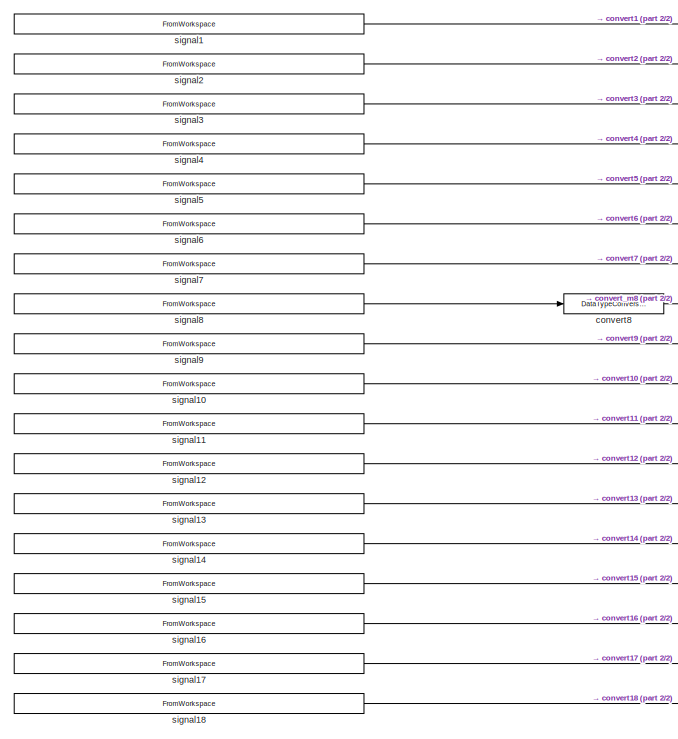
[diagram: root canvas - part 1/2, left side, full height]
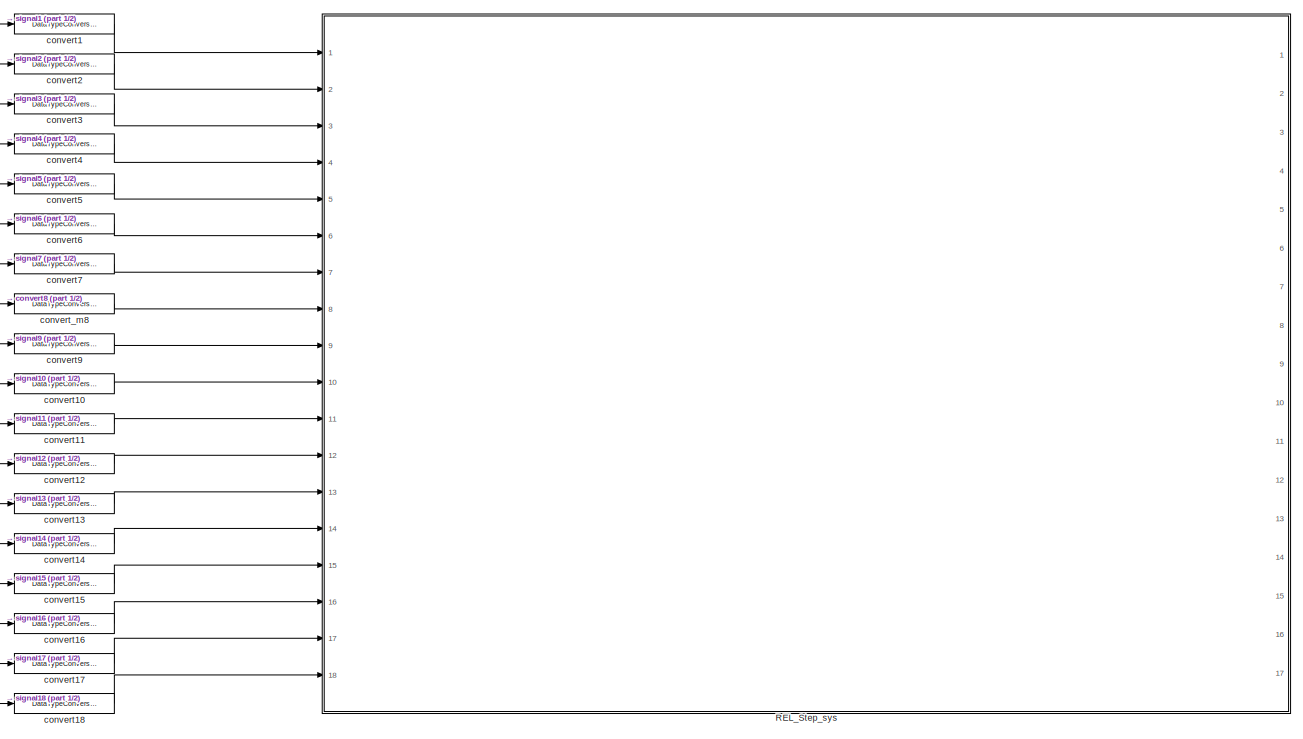
[diagram: root canvas - part 2/2, right side, full height]
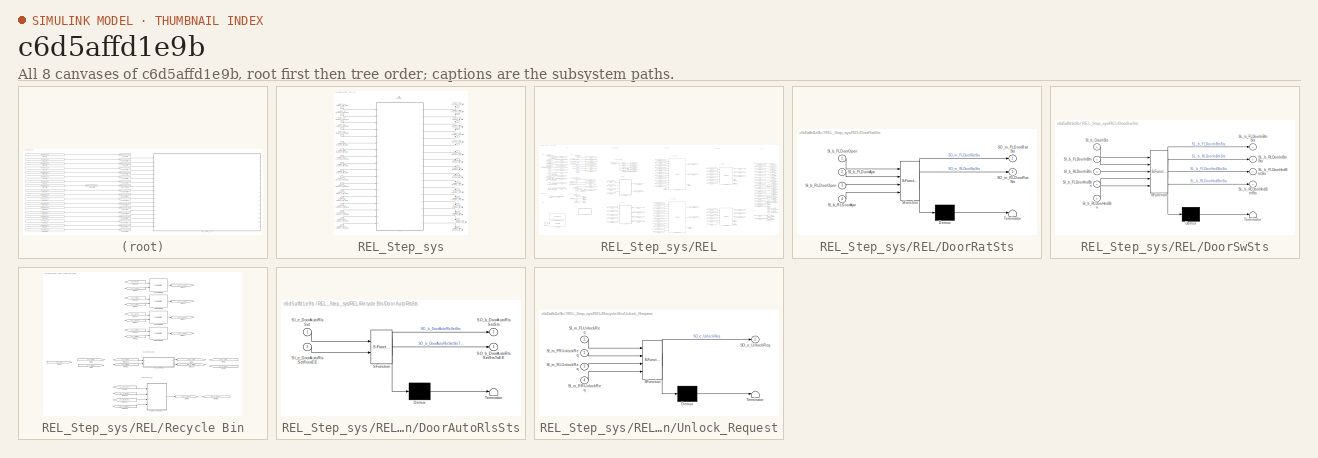
[diagram: thumbnail index - all 8 canvases of the model, root first then tree order]
MODEL slx_c6d5affd1e9b
KIND model
CONFIG AbsTol = auto
CONFIG EnableMultiTasking = on
CONFIG FixedStep = 0.01
CONFIG MaxStep = auto
CONFIG MinStep = auto
CONFIG RelTol = 1e-3
CONFIG SampleTimeConstraint = Unconstrained
CONFIG SolverName = FixedStepDiscrete
CONFIG StartTime = 0.0
CONFIG StopTime = 20.0
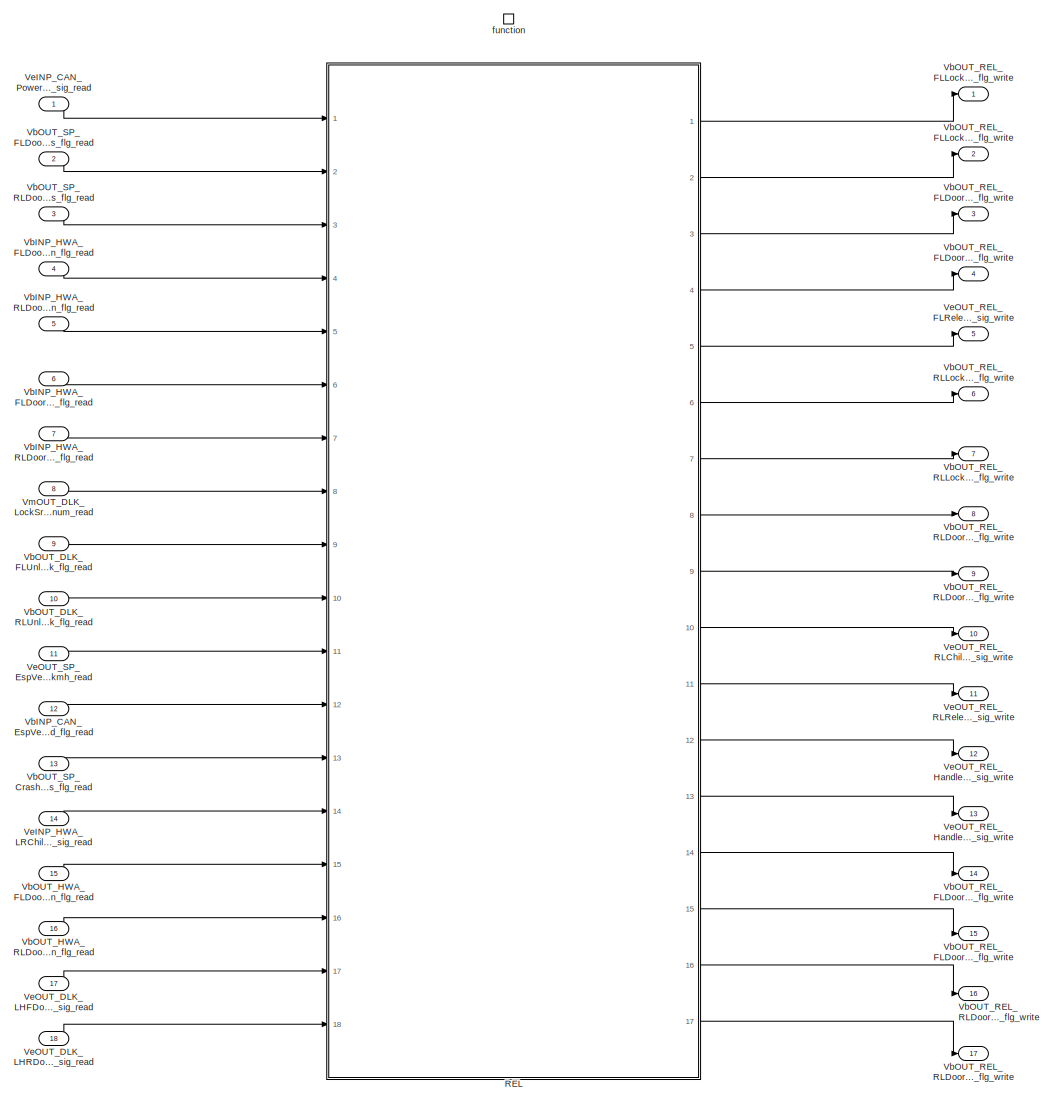
[diagram: REL_Step_sys - part 1/1, most of the canvas]
BLOCK [SubSystem] REL_Step_sys
  Ports = [18, 17, 0, 1]
  RequestExecContextInheritance = off
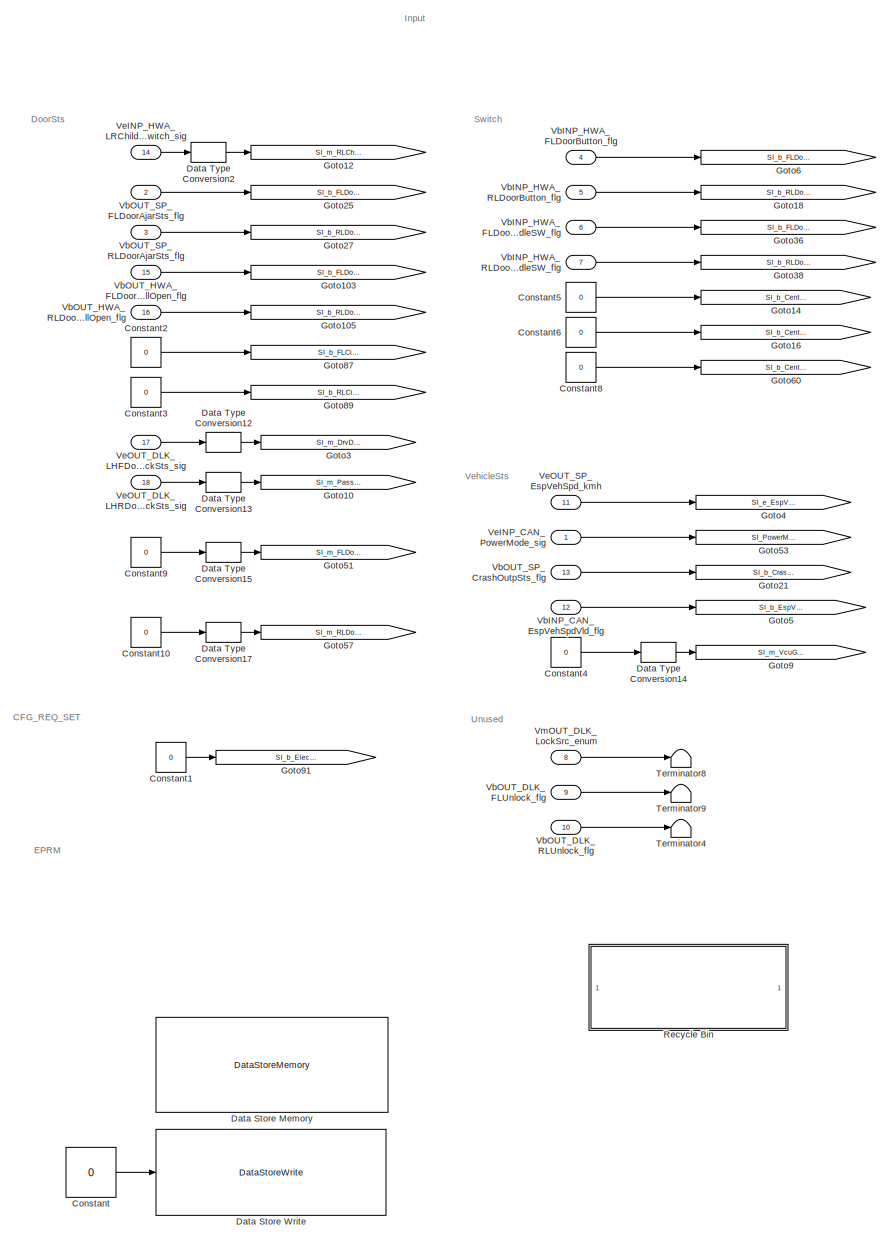
[diagram: REL_Step_sys/REL - part 1/5, left side, full height]
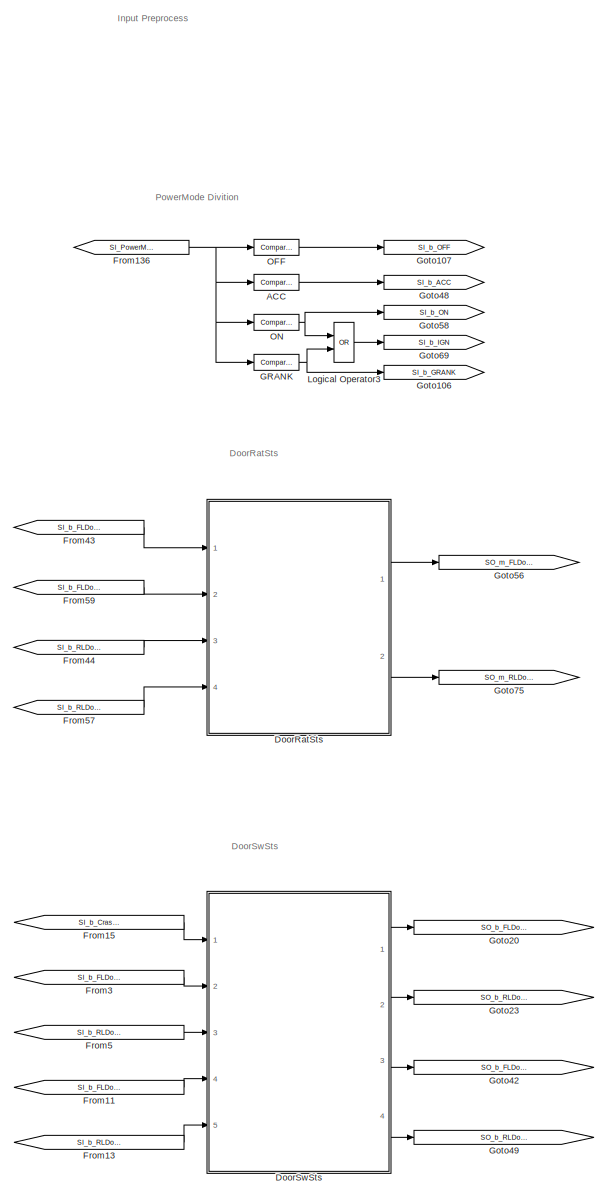
[diagram: REL_Step_sys/REL - part 2/5, center side, full height]
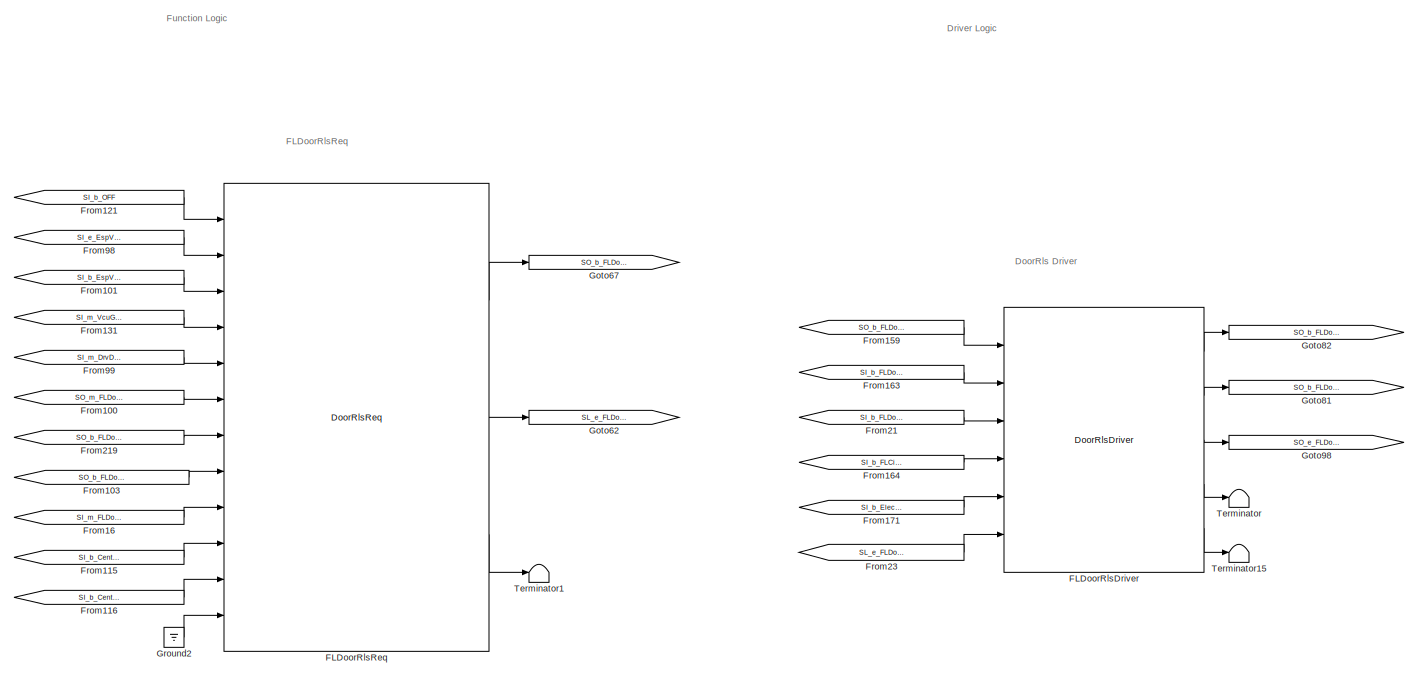
[diagram: REL_Step_sys/REL - part 3/5, top right region]
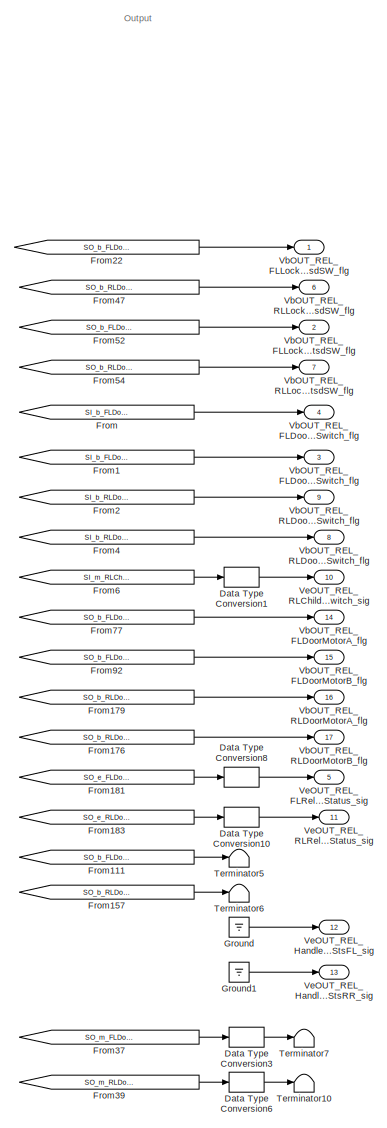
[diagram: REL_Step_sys/REL - part 4/5, right side, full height]
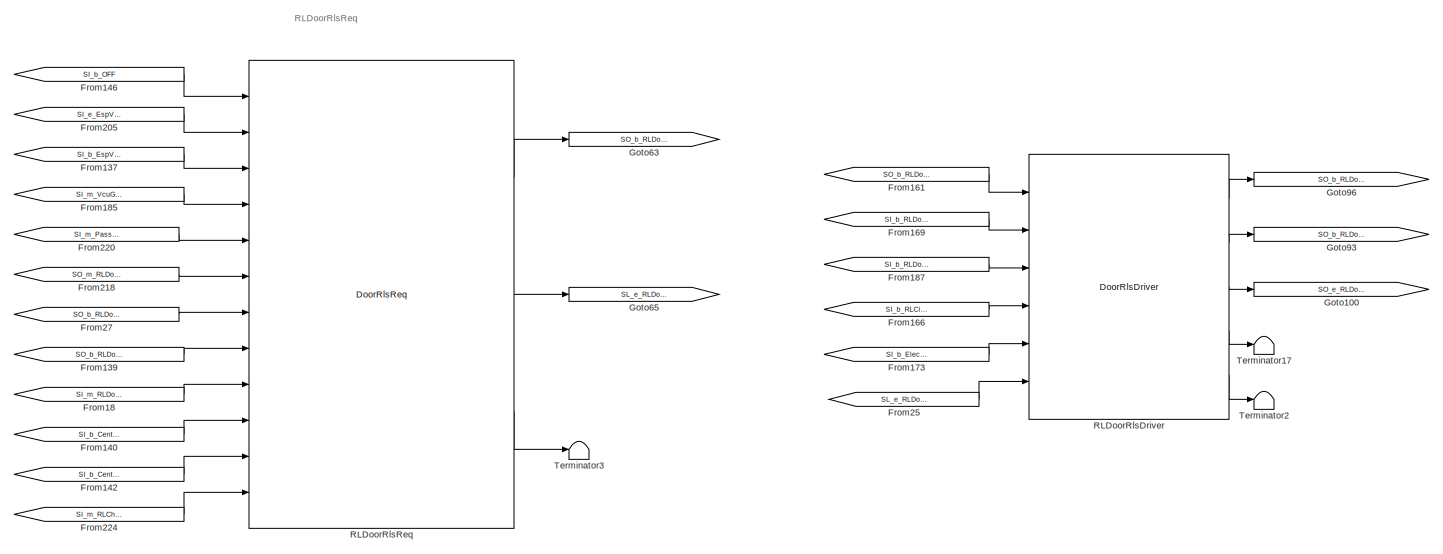
[diagram: REL_Step_sys/REL - part 5/5, bottom right region]
BLOCK [SubSystem] REL_Step_sys/REL
  Ports = [18, 17]
  RequestExecContextInheritance = off
BLOCK [Reference] REL_Step_sys/REL/ACC  REF=simulink/Logic and Bit
Operations/Compare
To Constant
  Commented = on
  Ports = [1, 1]
  SourceBlock = simulink/Logic and Bit\nOperations/Compare\nTo Constant
  SourceProductBaseCode = SL
  SourceType = Compare To Constant
BLOCK [Constant] REL_Step_sys/REL/Constant
  OutDataTypeStr = uint8
  Value = 0
BLOCK [Constant] REL_Step_sys/REL/Constant1
  OutDataTypeStr = boolean
  Value = 0
BLOCK [Constant] REL_Step_sys/REL/Constant10
  OutDataTypeStr = uint8
  Value = 0
BLOCK [Constant] REL_Step_sys/REL/Constant2
  OutDataTypeStr = boolean
  Value = 0
BLOCK [Constant] REL_Step_sys/REL/Constant3
  OutDataTypeStr = boolean
  Value = 0
BLOCK [Constant] REL_Step_sys/REL/Constant4
  OutDataTypeStr = uint8
  Value = 0
BLOCK [Constant] REL_Step_sys/REL/Constant5
  OutDataTypeStr = boolean
  Value = 0
BLOCK [Constant] REL_Step_sys/REL/Constant6
  OutDataTypeStr = boolean
  Value = 0
BLOCK [Constant] REL_Step_sys/REL/Constant8
  OutDataTypeStr = boolean
  Value = 0
BLOCK [Constant] REL_Step_sys/REL/Constant9
  OutDataTypeStr = uint8
  Value = 0
BLOCK [DataStoreMemory] REL_Step_sys/REL/Data Store Memory
  DataStoreName = E03_REL_L
  OutDataTypeStr = uint8
  ShowAdditionalParam = off
  WriteAfterWriteMsg = warning
BLOCK [DataStoreWrite] REL_Step_sys/REL/Data Store Write
  DataStoreName = E03_REL_L
  IndexOptions = Index vector (dialog)
  Indices = 1
  OutputSizes = 1
  Ports = [1]
BLOCK [DataTypeConversion] REL_Step_sys/REL/Data Type Conversion1
  OutDataTypeStr = uint8
  RndMeth = Floor
  SaturateOnIntegerOverflow = off
BLOCK [DataTypeConversion] REL_Step_sys/REL/Data Type Conversion10
  OutDataTypeStr = uint8
  RndMeth = Floor
  SaturateOnIntegerOverflow = off
BLOCK [DataTypeConversion] REL_Step_sys/REL/Data Type Conversion12
  OutDataTypeStr = Enum: Door_Sts_E
  RndMeth = Floor
  SaturateOnIntegerOverflow = off
BLOCK [DataTypeConversion] REL_Step_sys/REL/Data Type Conversion13
  OutDataTypeStr = Enum: Door_Sts_E
  RndMeth = Floor
  SaturateOnIntegerOverflow = off
BLOCK [DataTypeConversion] REL_Step_sys/REL/Data Type Conversion14
  OutDataTypeStr = Enum: Gear_Posn_E
  RndMeth = Floor
  SaturateOnIntegerOverflow = off
BLOCK [DataTypeConversion] REL_Step_sys/REL/Data Type Conversion15
  OutDataTypeStr = Enum: HndPos_Sts_E
  RndMeth = Floor
  SaturateOnIntegerOverflow = off
BLOCK [DataTypeConversion] REL_Step_sys/REL/Data Type Conversion17
  OutDataTypeStr = Enum: HndPos_Sts_E
  RndMeth = Floor
  SaturateOnIntegerOverflow = off
BLOCK [DataTypeConversion] REL_Step_sys/REL/Data Type Conversion2
  OutDataTypeStr = Enum: Child_Sts_E
  RndMeth = Floor
  SaturateOnIntegerOverflow = off
BLOCK [DataTypeConversion] REL_Step_sys/REL/Data Type Conversion3
  OutDataTypeStr = uint8
  RndMeth = Floor
  SaturateOnIntegerOverflow = off
BLOCK [DataTypeConversion] REL_Step_sys/REL/Data Type Conversion6
  OutDataTypeStr = uint8
  RndMeth = Floor
  SaturateOnIntegerOverflow = off
BLOCK [DataTypeConversion] REL_Step_sys/REL/Data Type Conversion8
  OutDataTypeStr = uint8
  RndMeth = Floor
  SaturateOnIntegerOverflow = off
BLOCK [SubSystem] REL_Step_sys/REL/DoorRatSts
  ErrorFcn = Stateflow.Translate.translate
  PermitHierarchicalResolution = ExplicitOnly
  Ports = [4, 2]
  RequestExecContextInheritance = off
  SFBlockType = Chart
  TreatAsAtomicUnit = on
BLOCK [Demux] REL_Step_sys/REL/DoorRatSts/ Demux 
  Outputs = 1
  Ports = [1, 1]
BLOCK [S-Function] REL_Step_sys/REL/DoorRatSts/ SFunction 
  EnableBusSupport = on
  FunctionName = sf_sfun
  PortCounts = [4 3]
  Ports = [4, 3]
  SFcnIsStateOwnerBlock = off
  SFunctionDeploymentMode = off
  Tag = Stateflow S-Function 3
BLOCK [Terminator] REL_Step_sys/REL/DoorRatSts/ Terminator 
BLOCK [Inport] REL_Step_sys/REL/DoorRatSts/SI_b_FLDoorAjar
  Port = 2
BLOCK [Inport] REL_Step_sys/REL/DoorRatSts/SI_b_FLDoorOpen
BLOCK [Inport] REL_Step_sys/REL/DoorRatSts/SI_b_RLDoorAjar
  Port = 4
BLOCK [Inport] REL_Step_sys/REL/DoorRatSts/SI_b_RLDoorOpen
  Port = 3
BLOCK [Outport] REL_Step_sys/REL/DoorRatSts/SO_m_FLDoorRatSts
BLOCK [Outport] REL_Step_sys/REL/DoorRatSts/SO_m_RLDoorRatSts
  Port = 2
BLOCK [SubSystem] REL_Step_sys/REL/DoorSwSts
  ErrorFcn = Stateflow.Translate.translate
  PermitHierarchicalResolution = ExplicitOnly
  Ports = [5, 4]
  RequestExecContextInheritance = off
  SFBlockType = Chart
  TreatAsAtomicUnit = on
BLOCK [Demux] REL_Step_sys/REL/DoorSwSts/ Demux 
  Outputs = 1
  Ports = [1, 1]
BLOCK [S-Function] REL_Step_sys/REL/DoorSwSts/ SFunction 
  EnableBusSupport = on
  FunctionName = sf_sfun
  PortCounts = [5 5]
  Ports = [5, 5]
  SFcnIsStateOwnerBlock = off
  SFunctionDeploymentMode = off
  Tag = Stateflow S-Function 23
BLOCK [Terminator] REL_Step_sys/REL/DoorSwSts/ Terminator 
BLOCK [Inport] REL_Step_sys/REL/DoorSwSts/SI_b_CrashSts
BLOCK [Inport] REL_Step_sys/REL/DoorSwSts/SI_b_FLDoorHndBtn
  Port = 4
BLOCK [Inport] REL_Step_sys/REL/DoorSwSts/SI_b_FLDoorInBtn
  Port = 2
BLOCK [Inport] REL_Step_sys/REL/DoorSwSts/SI_b_RLDoorHndBtn
  Port = 5
BLOCK [Inport] REL_Step_sys/REL/DoorSwSts/SI_b_RLDoorInBtn
  Port = 3
BLOCK [Outport] REL_Step_sys/REL/DoorSwSts/SL_b_FLDoorHndBtnSts
  Port = 3
BLOCK [Outport] REL_Step_sys/REL/DoorSwSts/SL_b_FLDoorInBtnSts
BLOCK [Outport] REL_Step_sys/REL/DoorSwSts/SL_b_RLDoorHndBtnSts
  Port = 4
BLOCK [Outport] REL_Step_sys/REL/DoorSwSts/SL_b_RLDoorInBtnSts
  Port = 2
BLOCK [Reference] REL_Step_sys/REL/FLDoorRlsDriver  REF=DoorRlsDriver/DoorRlsDriver
  Ports = [6, 5]
  SourceBlock = DoorRlsDriver/DoorRlsDriver
  SourceType = SubSystem
BLOCK [Reference] REL_Step_sys/REL/FLDoorRlsReq  REF=DoorRlsReq/DoorRlsReq
  Ports = [12, 3]
  SourceBlock = DoorRlsReq/DoorRlsReq
  SourceType = SubSystem
BLOCK [From] REL_Step_sys/REL/From
  GotoTag = SI_b_FLDoorAjar
BLOCK [From] REL_Step_sys/REL/From1
  GotoTag = SI_b_FLDoorOpen
BLOCK [From] REL_Step_sys/REL/From100
  GotoTag = SO_m_FLDoorRatSts
BLOCK [From] REL_Step_sys/REL/From101
  GotoTag = SI_b_EspVehSpdVld
BLOCK [From] REL_Step_sys/REL/From103
  GotoTag = SO_b_FLDoorHndBtnSts
BLOCK [From] REL_Step_sys/REL/From11
  GotoTag = SI_b_FLDoorHndBtn
BLOCK [From] REL_Step_sys/REL/From111
  GotoTag = SO_b_FLDoorRlsReq
BLOCK [From] REL_Step_sys/REL/From115
  GotoTag = SI_b_CentFLDoorBtnSts
BLOCK [From] REL_Step_sys/REL/From116
  GotoTag = SI_b_CentAllDoorBtnSts
BLOCK [From] REL_Step_sys/REL/From121
  GotoTag = SI_b_OFF
BLOCK [From] REL_Step_sys/REL/From13
  GotoTag = SI_b_RLDoorHndBtn
BLOCK [From] REL_Step_sys/REL/From131
  GotoTag = SI_m_VcuGearPosn
BLOCK [From] REL_Step_sys/REL/From136
  GotoTag = SI_PowerMode
BLOCK [From] REL_Step_sys/REL/From137
  GotoTag = SI_b_EspVehSpdVld
BLOCK [From] REL_Step_sys/REL/From139
  GotoTag = SO_b_RLDoorHndBtnSts
BLOCK [From] REL_Step_sys/REL/From140
  GotoTag = SI_b_CentRLDoorBtnSts
BLOCK [From] REL_Step_sys/REL/From142
  GotoTag = SI_b_CentAllDoorBtnSts
BLOCK [From] REL_Step_sys/REL/From146
  GotoTag = SI_b_OFF
BLOCK [From] REL_Step_sys/REL/From15
  GotoTag = SI_b_CrashSts
BLOCK [From] REL_Step_sys/REL/From157
  GotoTag = SO_b_RLDoorRlsReq
BLOCK [From] REL_Step_sys/REL/From159
  GotoTag = SO_b_FLDoorRlsReq
BLOCK [From] REL_Step_sys/REL/From16
  GotoTag = SI_m_FLDoorHandPosSts
BLOCK [From] REL_Step_sys/REL/From161
  GotoTag = SO_b_RLDoorRlsReq
BLOCK [From] REL_Step_sys/REL/From163
  GotoTag = SI_b_FLDoorAjar
BLOCK [From] REL_Step_sys/REL/From164
  GotoTag = SI_b_FLCinchHome
BLOCK [From] REL_Step_sys/REL/From166
  GotoTag = SI_b_RLCinchHome
BLOCK [From] REL_Step_sys/REL/From169
  GotoTag = SI_b_RLDoorAjar
BLOCK [From] REL_Step_sys/REL/From171
  GotoTag = SI_b_ElecDoorCfg
BLOCK [From] REL_Step_sys/REL/From173
  GotoTag = SI_b_ElecDoorCfg
BLOCK [From] REL_Step_sys/REL/From176
  GotoTag = SO_b_RLDoorMotorB
BLOCK [From] REL_Step_sys/REL/From179
  GotoTag = SO_b_RLDoorMotorA
BLOCK [From] REL_Step_sys/REL/From18
  GotoTag = SI_m_RLDoorHandPosSts
BLOCK [From] REL_Step_sys/REL/From181
  GotoTag = SO_e_FLDoorMotorCmd
BLOCK [From] REL_Step_sys/REL/From183
  GotoTag = SO_e_RLDoorMotorCmd
BLOCK [From] REL_Step_sys/REL/From185
  GotoTag = SI_m_VcuGearPosn
BLOCK [From] REL_Step_sys/REL/From187
  GotoTag = SI_b_RLDoorOpen
BLOCK [From] REL_Step_sys/REL/From2
  GotoTag = SI_b_RLDoorAjar
BLOCK [From] REL_Step_sys/REL/From205
  GotoTag = SI_e_EspVehSpd
BLOCK [From] REL_Step_sys/REL/From21
  GotoTag = SI_b_FLDoorOpen
BLOCK [From] REL_Step_sys/REL/From218
  GotoTag = SO_m_RLDoorRatSts
BLOCK [From] REL_Step_sys/REL/From219
  GotoTag = SO_b_FLDoorInBtnSts
BLOCK [From] REL_Step_sys/REL/From22
  GotoTag = SO_b_FLDoorInBtnSts
BLOCK [From] REL_Step_sys/REL/From220
  GotoTag = SI_m_PassDoorLockSts
BLOCK [From] REL_Step_sys/REL/From224
  GotoTag = SI_m_RLChildLckSts
BLOCK [From] REL_Step_sys/REL/From23
  GotoTag = SL_e_FLDoorRlsDelayTime
BLOCK [From] REL_Step_sys/REL/From25
  GotoTag = SL_e_RLDoorRlsDelayTime
BLOCK [From] REL_Step_sys/REL/From27
  GotoTag = SO_b_RLDoorInBtnSts
BLOCK [From] REL_Step_sys/REL/From3
  GotoTag = SI_b_FLDoorInBtn
BLOCK [From] REL_Step_sys/REL/From37
  GotoTag = SO_m_FLDoorRatSts
BLOCK [From] REL_Step_sys/REL/From39
  GotoTag = SO_m_RLDoorRatSts
BLOCK [From] REL_Step_sys/REL/From4
  GotoTag = SI_b_RLDoorOpen
BLOCK [From] REL_Step_sys/REL/From43
  GotoTag = SI_b_FLDoorOpen
BLOCK [From] REL_Step_sys/REL/From44
  GotoTag = SI_b_RLDoorOpen
BLOCK [From] REL_Step_sys/REL/From47
  GotoTag = SO_b_RLDoorInBtnSts
BLOCK [From] REL_Step_sys/REL/From5
  GotoTag = SI_b_RLDoorInBtn
BLOCK [From] REL_Step_sys/REL/From52
  GotoTag = SO_b_FLDoorHndBtnSts
BLOCK [From] REL_Step_sys/REL/From54
  GotoTag = SO_b_RLDoorHndBtnSts
BLOCK [From] REL_Step_sys/REL/From57
  GotoTag = SI_b_RLDoorAjar
BLOCK [From] REL_Step_sys/REL/From59
  GotoTag = SI_b_FLDoorAjar
BLOCK [From] REL_Step_sys/REL/From6
  GotoTag = SI_m_RLChildLckSts
BLOCK [From] REL_Step_sys/REL/From77
  GotoTag = SO_b_FLDoorMotorA
BLOCK [From] REL_Step_sys/REL/From92
  GotoTag = SO_b_FLDoorMotorB
BLOCK [From] REL_Step_sys/REL/From98
  GotoTag = SI_e_EspVehSpd
BLOCK [From] REL_Step_sys/REL/From99
  GotoTag = SI_m_DrvDoorLockSts
BLOCK [Reference] REL_Step_sys/REL/GRANK  REF=simulink/Logic and Bit
Operations/Compare
To Constant
  Commented = on
  Ports = [1, 1]
  SourceBlock = simulink/Logic and Bit\nOperations/Compare\nTo Constant
  SourceProductBaseCode = SL
  SourceType = Compare To Constant
BLOCK [Goto] REL_Step_sys/REL/Goto10
  GotoTag = SI_m_PassDoorLockSts
BLOCK [Goto] REL_Step_sys/REL/Goto100
  GotoTag = SO_e_RLDoorMotorCmd
BLOCK [Goto] REL_Step_sys/REL/Goto103
  GotoTag = SI_b_FLDoorOpen
BLOCK [Goto] REL_Step_sys/REL/Goto105
  GotoTag = SI_b_RLDoorOpen
BLOCK [Goto] REL_Step_sys/REL/Goto106
  Commented = on
  GotoTag = SI_b_GRANK
BLOCK [Goto] REL_Step_sys/REL/Goto107
  GotoTag = SI_b_OFF
BLOCK [Goto] REL_Step_sys/REL/Goto12
  GotoTag = SI_m_RLChildLckSts
BLOCK [Goto] REL_Step_sys/REL/Goto14
  GotoTag = SI_b_CentFLDoorBtnSts
BLOCK [Goto] REL_Step_sys/REL/Goto16
  GotoTag = SI_b_CentRLDoorBtnSts
BLOCK [Goto] REL_Step_sys/REL/Goto18
  GotoTag = SI_b_RLDoorInBtn
BLOCK [Goto] REL_Step_sys/REL/Goto20
  GotoTag = SO_b_FLDoorInBtnSts
BLOCK [Goto] REL_Step_sys/REL/Goto21
  GotoTag = SI_b_CrashSts
BLOCK [Goto] REL_Step_sys/REL/Goto23
  GotoTag = SO_b_RLDoorInBtnSts
BLOCK [Goto] REL_Step_sys/REL/Goto25
  GotoTag = SI_b_FLDoorAjar
BLOCK [Goto] REL_Step_sys/REL/Goto27
  GotoTag = SI_b_RLDoorAjar
BLOCK [Goto] REL_Step_sys/REL/Goto3
  GotoTag = SI_m_DrvDoorLockSts
BLOCK [Goto] REL_Step_sys/REL/Goto36
  GotoTag = SI_b_FLDoorHndBtn
BLOCK [Goto] REL_Step_sys/REL/Goto38
  GotoTag = SI_b_RLDoorHndBtn
BLOCK [Goto] REL_Step_sys/REL/Goto4
  GotoTag = SI_e_EspVehSpd
BLOCK [Goto] REL_Step_sys/REL/Goto42
  GotoTag = SO_b_FLDoorHndBtnSts
BLOCK [Goto] REL_Step_sys/REL/Goto48
  Commented = on
  GotoTag = SI_b_ACC
BLOCK [Goto] REL_Step_sys/REL/Goto49
  GotoTag = SO_b_RLDoorHndBtnSts
BLOCK [Goto] REL_Step_sys/REL/Goto5
  GotoTag = SI_b_EspVehSpdVld
BLOCK [Goto] REL_Step_sys/REL/Goto51
  GotoTag = SI_m_FLDoorHandPosSts
BLOCK [Goto] REL_Step_sys/REL/Goto53
  GotoTag = SI_PowerMode
BLOCK [Goto] REL_Step_sys/REL/Goto56
  GotoTag = SO_m_FLDoorRatSts
BLOCK [Goto] REL_Step_sys/REL/Goto57
  GotoTag = SI_m_RLDoorHandPosSts
BLOCK [Goto] REL_Step_sys/REL/Goto58
  Commented = on
  GotoTag = SI_b_ON
BLOCK [Goto] REL_Step_sys/REL/Goto6
  GotoTag = SI_b_FLDoorInBtn
BLOCK [Goto] REL_Step_sys/REL/Goto60
  GotoTag = SI_b_CentAllDoorBtnSts
BLOCK [Goto] REL_Step_sys/REL/Goto62
  GotoTag = SL_e_FLDoorRlsDelayTime
BLOCK [Goto] REL_Step_sys/REL/Goto63
  GotoTag = SO_b_RLDoorRlsReq
BLOCK [Goto] REL_Step_sys/REL/Goto65
  GotoTag = SL_e_RLDoorRlsDelayTime
BLOCK [Goto] REL_Step_sys/REL/Goto67
  GotoTag = SO_b_FLDoorRlsReq
BLOCK [Goto] REL_Step_sys/REL/Goto69
  Commented = on
  GotoTag = SI_b_IGN
BLOCK [Goto] REL_Step_sys/REL/Goto75
  GotoTag = SO_m_RLDoorRatSts
BLOCK [Goto] REL_Step_sys/REL/Goto81
  GotoTag = SO_b_FLDoorMotorB
BLOCK [Goto] REL_Step_sys/REL/Goto82
  GotoTag = SO_b_FLDoorMotorA
BLOCK [Goto] REL_Step_sys/REL/Goto87
  GotoTag = SI_b_FLCinchHome
BLOCK [Goto] REL_Step_sys/REL/Goto89
  GotoTag = SI_b_RLCinchHome
BLOCK [Goto] REL_Step_sys/REL/Goto9
  GotoTag = SI_m_VcuGearPosn
BLOCK [Goto] REL_Step_sys/REL/Goto91
  GotoTag = SI_b_ElecDoorCfg
BLOCK [Goto] REL_Step_sys/REL/Goto93
  GotoTag = SO_b_RLDoorMotorB
BLOCK [Goto] REL_Step_sys/REL/Goto96
  GotoTag = SO_b_RLDoorMotorA
BLOCK [Goto] REL_Step_sys/REL/Goto98
  GotoTag = SO_e_FLDoorMotorCmd
BLOCK [Ground] REL_Step_sys/REL/Ground
BLOCK [Ground] REL_Step_sys/REL/Ground1
BLOCK [Ground] REL_Step_sys/REL/Ground2
BLOCK [Logic] REL_Step_sys/REL/Logical Operator3
  AllPortsSameDT = off
  Commented = on
  Operator = OR
  OutDataTypeStr = boolean
  Ports = [2, 1]
BLOCK [Reference] REL_Step_sys/REL/OFF   REF=simulink/Logic and Bit
Operations/Compare
To Constant
  Ports = [1, 1]
  SourceBlock = simulink/Logic and Bit\nOperations/Compare\nTo Constant
  SourceProductBaseCode = SL
  SourceType = Compare To Constant
BLOCK [Reference] REL_Step_sys/REL/ON  REF=simulink/Logic and Bit
Operations/Compare
To Constant
  Commented = on
  Ports = [1, 1]
  SourceBlock = simulink/Logic and Bit\nOperations/Compare\nTo Constant
  SourceProductBaseCode = SL
  SourceType = Compare To Constant
BLOCK [Reference] REL_Step_sys/REL/RLDoorRlsDriver  REF=DoorRlsDriver/DoorRlsDriver
  Ports = [6, 5]
  SourceBlock = DoorRlsDriver/DoorRlsDriver
  SourceType = SubSystem
BLOCK [Reference] REL_Step_sys/REL/RLDoorRlsReq  REF=DoorRlsReq/DoorRlsReq
  Ports = [12, 3]
  SourceBlock = DoorRlsReq/DoorRlsReq
  SourceType = SubSystem
BLOCK [SubSystem] REL_Step_sys/REL/Recycle Bin
  Ports = []
  RequestExecContextInheritance = off
BLOCK [SubSystem] REL_Step_sys/REL/Recycle Bin/DoorAutoRlsSts
  Commented = on
  ErrorFcn = Stateflow.Translate.translate
  PermitHierarchicalResolution = ExplicitOnly
  Ports = [2, 2]
  RequestExecContextInheritance = off
  SFBlockType = Chart
  TreatAsAtomicUnit = on
BLOCK [Demux] REL_Step_sys/REL/Recycle Bin/DoorAutoRlsSts/ Demux 
  Outputs = 1
  Ports = [1, 1]
BLOCK [S-Function] REL_Step_sys/REL/Recycle Bin/DoorAutoRlsSts/ SFunction 
  EnableBusSupport = on
  FunctionName = sf_sfun
  PortCounts = [2 3]
  Ports = [2, 3]
  SFcnIsStateOwnerBlock = off
  SFunctionDeploymentMode = off
  Tag = Stateflow S-Function 1
BLOCK [Terminator] REL_Step_sys/REL/Recycle Bin/DoorAutoRlsSts/ Terminator 
BLOCK [Inport] REL_Step_sys/REL/Recycle Bin/DoorAutoRlsSts/SI_e_DoorAutoRlsSet
BLOCK [Inport] REL_Step_sys/REL/Recycle Bin/DoorAutoRlsSts/SI_e_DoorAutoRlsSetFromEE
  Port = 2
BLOCK [Outport] REL_Step_sys/REL/Recycle Bin/DoorAutoRlsSts/SO_b_DoorAutoRlsSetSts
BLOCK [Outport] REL_Step_sys/REL/Recycle Bin/DoorAutoRlsSts/SO_b_DoorAutoRlsSetStsToEE
  Port = 2
BLOCK [Reference] REL_Step_sys/REL/Recycle Bin/FLDoorRatSts  REF=DoorRatSts/DoorRatSts
  Commented = on
  Ports = [2, 1]
  SourceBlock = DoorRatSts/DoorRatSts
  SourceType = SubSystem
BLOCK [Reference] REL_Step_sys/REL/Recycle Bin/FRDoorRatSts  REF=DoorRatSts/DoorRatSts
  Commented = on
  Ports = [2, 1]
  SourceBlock = DoorRatSts/DoorRatSts
  SourceType = SubSystem
BLOCK [From] REL_Step_sys/REL/Recycle Bin/From1
  Commented = on
  GotoTag = SO_b_DrvrDoorAutoRlsSetSts
BLOCK [From] REL_Step_sys/REL/Recycle Bin/From132
  Commented = on
  GotoTag = SL_m_FRUnlockReq
BLOCK [From] REL_Step_sys/REL/Recycle Bin/From189
  Commented = on
  GotoTag = SI_b_FRDoorOpen
BLOCK [From] REL_Step_sys/REL/Recycle Bin/From190
  Commented = on
  GotoTag = SI_b_FLDoorOpen
BLOCK [From] REL_Step_sys/REL/Recycle Bin/From191
  Commented = on
  GotoTag = SI_b_RLDoorOpen
BLOCK [From] REL_Step_sys/REL/Recycle Bin/From192
  Commented = on
  GotoTag = SI_b_RRDoorOpen
BLOCK [From] REL_Step_sys/REL/Recycle Bin/From207
  Commented = on
  GotoTag = SL_m_RLUnlockReq
BLOCK [From] REL_Step_sys/REL/Recycle Bin/From208
  Commented = on
  GotoTag = SL_m_RRUnlockReq
BLOCK [From] REL_Step_sys/REL/Recycle Bin/From239
  Commented = on
  GotoTag = SI_e_DrvDoorAutoRlsSet
BLOCK [From] REL_Step_sys/REL/Recycle Bin/From30
  Commented = on
  GotoTag = SI_b_FRDoorAjar
BLOCK [From] REL_Step_sys/REL/Recycle Bin/From31
  Commented = on
  GotoTag = SI_b_RLDoorAjar
BLOCK [From] REL_Step_sys/REL/Recycle Bin/From32
  Commented = on
  GotoTag = SI_b_RRDoorAjar
BLOCK [From] REL_Step_sys/REL/Recycle Bin/From33
  Commented = on
  GotoTag = SI_b_FLDoorAjar
BLOCK [From] REL_Step_sys/REL/Recycle Bin/From35
  Commented = on
  GotoTag = SO_b_DrvDoorAutoRlsSetStsToEE
BLOCK [From] REL_Step_sys/REL/Recycle Bin/From42
  Commented = on
  GotoTag = SI_e_DrvDoorAutoRlsSetFromEE
BLOCK [From] REL_Step_sys/REL/Recycle Bin/From51
  Commented = on
  GotoTag = SO_e_DLKUnlockReq
BLOCK [From] REL_Step_sys/REL/Recycle Bin/From85
  Commented = on
  GotoTag = SL_m_FLUnlockReq
BLOCK [Goto] REL_Step_sys/REL/Recycle Bin/Goto
  Commented = on
  GotoTag = SI_e_DrvDoorAutoRlsSetFromEE
BLOCK [Goto] REL_Step_sys/REL/Recycle Bin/Goto1
  Commented = on
  GotoTag = SO_b_DrvrDoorAutoRlsSetSts
BLOCK [Goto] REL_Step_sys/REL/Recycle Bin/Goto109
  Commented = on
  GotoTag = SO_b_DrvDoorAutoRlsSetStsToEE
BLOCK [Goto] REL_Step_sys/REL/Recycle Bin/Goto2
  Commented = on
  GotoTag = SI_e_DrvDoorAutoRlsSet
BLOCK [Goto] REL_Step_sys/REL/Recycle Bin/Goto29
  Commented = on
  GotoTag = SO_e_FLDoorRatSts
BLOCK [Goto] REL_Step_sys/REL/Recycle Bin/Goto30
  Commented = on
  GotoTag = SO_e_FRDoorRatSts
BLOCK [Goto] REL_Step_sys/REL/Recycle Bin/Goto31
  Commented = on
  GotoTag = SO_e_RLDoorRatSts
BLOCK [Goto] REL_Step_sys/REL/Recycle Bin/Goto32
  Commented = on
  GotoTag = SO_e_RRDoorRatSts
BLOCK [Goto] REL_Step_sys/REL/Recycle Bin/Goto54
  Commented = on
  GotoTag = SI_b_DrvrDoorAutoRlsReq
BLOCK [Goto] REL_Step_sys/REL/Recycle Bin/Goto8
  Commented = on
  GotoTag = SO_e_DLKUnlockReq
BLOCK [Reference] REL_Step_sys/REL/Recycle Bin/RLDoorRatSts  REF=DoorRatSts/DoorRatSts
  Commented = on
  Ports = [2, 1]
  SourceBlock = DoorRatSts/DoorRatSts
  SourceType = SubSystem
BLOCK [Reference] REL_Step_sys/REL/Recycle Bin/RRDoorRatSts  REF=DoorRatSts/DoorRatSts
  Commented = on
  Ports = [2, 1]
  SourceBlock = DoorRatSts/DoorRatSts
  SourceType = SubSystem
BLOCK [SubSystem] REL_Step_sys/REL/Recycle Bin/Unlock_Request
  Commented = on
  ErrorFcn = Stateflow.Translate.translate
  PermitHierarchicalResolution = ExplicitOnly
  Ports = [4, 1]
  RequestExecContextInheritance = off
  SFBlockType = Chart
  TreatAsAtomicUnit = on
BLOCK [Demux] REL_Step_sys/REL/Recycle Bin/Unlock_Request/ Demux 
  Outputs = 1
  Ports = [1, 1]
BLOCK [S-Function] REL_Step_sys/REL/Recycle Bin/Unlock_Request/ SFunction 
  EnableBusSupport = on
  FunctionName = sf_sfun
  PortCounts = [4 2]
  Ports = [4, 2]
  SFcnIsStateOwnerBlock = off
  SFunctionDeploymentMode = off
  Tag = Stateflow S-Function 2
BLOCK [Terminator] REL_Step_sys/REL/Recycle Bin/Unlock_Request/ Terminator 
BLOCK [Inport] REL_Step_sys/REL/Recycle Bin/Unlock_Request/SI_m_FLUnlockReq
BLOCK [Inport] REL_Step_sys/REL/Recycle Bin/Unlock_Request/SI_m_FRUnlockReq
  Port = 2
BLOCK [Inport] REL_Step_sys/REL/Recycle Bin/Unlock_Request/SI_m_RLUnlockReq
  Port = 3
BLOCK [Inport] REL_Step_sys/REL/Recycle Bin/Unlock_Request/SI_m_RRUnlockReq
  Port = 4
BLOCK [Outport] REL_Step_sys/REL/Recycle Bin/Unlock_Request/SO_e_UnlockReq
BLOCK [Terminator] REL_Step_sys/REL/Terminator
BLOCK [Terminator] REL_Step_sys/REL/Terminator1
BLOCK [Terminator] REL_Step_sys/REL/Terminator10
BLOCK [Terminator] REL_Step_sys/REL/Terminator15
BLOCK [Terminator] REL_Step_sys/REL/Terminator17
BLOCK [Terminator] REL_Step_sys/REL/Terminator2
BLOCK [Terminator] REL_Step_sys/REL/Terminator3
BLOCK [Terminator] REL_Step_sys/REL/Terminator4
BLOCK [Terminator] REL_Step_sys/REL/Terminator5
BLOCK [Terminator] REL_Step_sys/REL/Terminator6
BLOCK [Terminator] REL_Step_sys/REL/Terminator7
BLOCK [Terminator] REL_Step_sys/REL/Terminator8
BLOCK [Terminator] REL_Step_sys/REL/Terminator9
BLOCK [Inport] REL_Step_sys/REL/VbINP_CAN_EspVehSpdVld_flg
  Port = 12
BLOCK [Inport] REL_Step_sys/REL/VbINP_HWA_FLDoorButton_flg
  Port = 4
BLOCK [Inport] REL_Step_sys/REL/VbINP_HWA_FLDoorHandleSW_flg
  Port = 6
BLOCK [Inport] REL_Step_sys/REL/VbINP_HWA_RLDoorButton_flg
  Port = 5
BLOCK [Inport] REL_Step_sys/REL/VbINP_HWA_RLDoorHandleSW_flg
  Port = 7
BLOCK [Inport] REL_Step_sys/REL/VbOUT_DLK_FLUnlock_flg
  Port = 9
BLOCK [Inport] REL_Step_sys/REL/VbOUT_DLK_RLUnlock_flg
  Port = 10
BLOCK [Inport] REL_Step_sys/REL/VbOUT_HWA_FLDoorFullOpen_flg
  Port = 15
BLOCK [Inport] REL_Step_sys/REL/VbOUT_HWA_RLDoorFullOpen_flg
  Port = 16
BLOCK [Outport] REL_Step_sys/REL/VbOUT_REL_FLDoorAjarSwitch_flg
  Port = 4
BLOCK [Outport] REL_Step_sys/REL/VbOUT_REL_FLDoorMotorA_flg
  Port = 14
BLOCK [Outport] REL_Step_sys/REL/VbOUT_REL_FLDoorMotorB_flg
  Port = 15
BLOCK [Outport] REL_Step_sys/REL/VbOUT_REL_FLDoorOpenSwitch_flg
  Port = 3
BLOCK [Outport] REL_Step_sys/REL/VbOUT_REL_FLLockReleaseInsdSW_flg
BLOCK [Outport] REL_Step_sys/REL/VbOUT_REL_FLLockReleaseOutsdSW_flg
  Port = 2
BLOCK [Outport] REL_Step_sys/REL/VbOUT_REL_RLDoorAjarSwitch_flg
  Port = 9
BLOCK [Outport] REL_Step_sys/REL/VbOUT_REL_RLDoorMotorA_flg
  Port = 16
BLOCK [Outport] REL_Step_sys/REL/VbOUT_REL_RLDoorMotorB_flg
  Port = 17
BLOCK [Outport] REL_Step_sys/REL/VbOUT_REL_RLDoorOpenSwitch_flg
  Port = 8
BLOCK [Outport] REL_Step_sys/REL/VbOUT_REL_RLLockReleaseInsdSW_flg
  Port = 6
BLOCK [Outport] REL_Step_sys/REL/VbOUT_REL_RLLockReleaseOutsdSW_flg
  Port = 7
BLOCK [Inport] REL_Step_sys/REL/VbOUT_SP_CrashOutpSts_flg
  Port = 13
BLOCK [Inport] REL_Step_sys/REL/VbOUT_SP_FLDoorAjarSts_flg
  Port = 2
BLOCK [Inport] REL_Step_sys/REL/VbOUT_SP_RLDoorAjarSts_flg
  Port = 3
BLOCK [Inport] REL_Step_sys/REL/VeINP_CAN_PowerMode_sig
BLOCK [Inport] REL_Step_sys/REL/VeINP_HWA_LRChildrenProtectSwitch_sig
  Port = 14
BLOCK [Inport] REL_Step_sys/REL/VeOUT_DLK_LHFDoorLockSts_sig
  Port = 17
BLOCK [Inport] REL_Step_sys/REL/VeOUT_DLK_LHRDoorLockSts_sig
  Port = 18
BLOCK [Outport] REL_Step_sys/REL/VeOUT_REL_FLReleaseLatchStatus_sig
  Port = 5
BLOCK [Outport] REL_Step_sys/REL/VeOUT_REL_HandleSwitchStsFL_sig
  Port = 12
BLOCK [Outport] REL_Step_sys/REL/VeOUT_REL_HandleSwitchStsRR_sig
  Port = 13
BLOCK [Outport] REL_Step_sys/REL/VeOUT_REL_RLChildrenProtectSwitch_sig
  Port = 10
BLOCK [Outport] REL_Step_sys/REL/VeOUT_REL_RLReleaseLatchStatus_sig
  Port = 11
BLOCK [Inport] REL_Step_sys/REL/VeOUT_SP_EspVehSpd_kmh
  Port = 11
BLOCK [Inport] REL_Step_sys/REL/VmOUT_DLK_LockSrc_enum
  Port = 8
BLOCK [Inport] REL_Step_sys/VbINP_CAN_EspVehSpdVld_flg_VbINP_CAN_EspVehSpdVld_flg_read
  Port = 12
BLOCK [Inport] REL_Step_sys/VbINP_HWA_FLDoorButton_flg_VbINP_HWA_FLDoorButton_flg_read
  Port = 4
BLOCK [Inport] REL_Step_sys/VbINP_HWA_FLDoorHandleSW_flg_VbINP_HWA_FLDoorHandleSW_flg_read
  Port = 6
BLOCK [Inport] REL_Step_sys/VbINP_HWA_RLDoorButton_flg_VbINP_HWA_RLDoorButton_flg_read
  Port = 5
BLOCK [Inport] REL_Step_sys/VbINP_HWA_RLDoorHandleSW_flg_VbINP_HWA_RLDoorHandleSW_flg_read
  Port = 7
BLOCK [Inport] REL_Step_sys/VbOUT_DLK_FLUnlock_flg_VbOUT_DLK_FLUnlock_flg_read
  Port = 9
BLOCK [Inport] REL_Step_sys/VbOUT_DLK_RLUnlock_flg_VbOUT_DLK_RLUnlock_flg_read
  Port = 10
BLOCK [Inport] REL_Step_sys/VbOUT_HWA_FLDoorFullOpen_flg_VbOUT_HWA_FLDoorFullOpen_flg_read
  Port = 15
BLOCK [Inport] REL_Step_sys/VbOUT_HWA_RLDoorFullOpen_flg_VbOUT_HWA_RLDoorFullOpen_flg_read
  Port = 16
BLOCK [Outport] REL_Step_sys/VbOUT_REL_FLDoorAjarSwitch_flg_VbOUT_REL_FLDoorAjarSwitch_flg_write
  EnsureOutportIsVirtual = on
  Port = 4
BLOCK [Outport] REL_Step_sys/VbOUT_REL_FLDoorMotorA_flg_VbOUT_REL_FLDoorMotorA_flg_write
  EnsureOutportIsVirtual = on
  Port = 14
BLOCK [Outport] REL_Step_sys/VbOUT_REL_FLDoorMotorB_flg_VbOUT_REL_FLDoorMotorB_flg_write
  EnsureOutportIsVirtual = on
  Port = 15
BLOCK [Outport] REL_Step_sys/VbOUT_REL_FLDoorOpenSwitch_flg_VbOUT_REL_FLDoorOpenSwitch_flg_write
  EnsureOutportIsVirtual = on
  Port = 3
BLOCK [Outport] REL_Step_sys/VbOUT_REL_FLLockReleaseInsdSW_flg_VbOUT_REL_FLLockReleaseInsdSW_flg_write
  EnsureOutportIsVirtual = on
BLOCK [Outport] REL_Step_sys/VbOUT_REL_FLLockReleaseOutsdSW_flg_VbOUT_REL_FLLockReleaseOutsdSW_flg_write
  EnsureOutportIsVirtual = on
  Port = 2
BLOCK [Outport] REL_Step_sys/VbOUT_REL_RLDoorAjarSwitch_flg_VbOUT_REL_RLDoorAjarSwitch_flg_write
  EnsureOutportIsVirtual = on
  Port = 9
BLOCK [Outport] REL_Step_sys/VbOUT_REL_RLDoorMotorA_flg_VbOUT_REL_RLDoorMotorA_flg_write
  EnsureOutportIsVirtual = on
  Port = 16
BLOCK [Outport] REL_Step_sys/VbOUT_REL_RLDoorMotorB_flg_VbOUT_REL_RLDoorMotorB_flg_write
  EnsureOutportIsVirtual = on
  Port = 17
BLOCK [Outport] REL_Step_sys/VbOUT_REL_RLDoorOpenSwitch_flg_VbOUT_REL_RLDoorOpenSwitch_flg_write
  EnsureOutportIsVirtual = on
  Port = 8
BLOCK [Outport] REL_Step_sys/VbOUT_REL_RLLockReleaseInsdSW_flg_VbOUT_REL_RLLockReleaseInsdSW_flg_write
  EnsureOutportIsVirtual = on
  Port = 6
BLOCK [Outport] REL_Step_sys/VbOUT_REL_RLLockReleaseOutsdSW_flg_VbOUT_REL_RLLockReleaseOutsdSW_flg_write
  EnsureOutportIsVirtual = on
  Port = 7
BLOCK [Inport] REL_Step_sys/VbOUT_SP_CrashOutpSts_flg_VbOUT_SP_CrashOutpSts_flg_read
  Port = 13
BLOCK [Inport] REL_Step_sys/VbOUT_SP_FLDoorAjarSts_flg_VbOUT_SP_FLDoorAjarSts_flg_read
  Port = 2
BLOCK [Inport] REL_Step_sys/VbOUT_SP_RLDoorAjarSts_flg_VbOUT_SP_RLDoorAjarSts_flg_read
  Port = 3
BLOCK [Inport] REL_Step_sys/VeINP_CAN_PowerMode_sig_VeINP_CAN_PowerMode_sig_read
BLOCK [Inport] REL_Step_sys/VeINP_HWA_LRChildrenProtectSwitch_sig_VeINP_HWA_LRChildrenProtectSwitch_sig_read
  Port = 14
BLOCK [Inport] REL_Step_sys/VeOUT_DLK_LHFDoorLockSts_sig_VeOUT_DLK_LHFDoorLockSts_sig_read
  Port = 17
BLOCK [Inport] REL_Step_sys/VeOUT_DLK_LHRDoorLockSts_sig_VeOUT_DLK_LHRDoorLockSts_sig_read
  Port = 18
BLOCK [Outport] REL_Step_sys/VeOUT_REL_FLReleaseLatchStatus_sig_VeOUT_REL_FLReleaseLatchStatus_sig_write
  EnsureOutportIsVirtual = on
  Port = 5
BLOCK [Outport] REL_Step_sys/VeOUT_REL_HandleSwitchStsFL_sig_VeOUT_REL_HandleSwitchStsFL_sig_write
  EnsureOutportIsVirtual = on
  Port = 12
BLOCK [Outport] REL_Step_sys/VeOUT_REL_HandleSwitchStsRR_sig_VeOUT_REL_HandleSwitchStsRR_sig_write
  EnsureOutportIsVirtual = on
  Port = 13
BLOCK [Outport] REL_Step_sys/VeOUT_REL_RLChildrenProtectSwitch_sig_VeOUT_REL_RLChildrenProtectSwitch_sig_write
  EnsureOutportIsVirtual = on
  Port = 10
BLOCK [Outport] REL_Step_sys/VeOUT_REL_RLReleaseLatchStatus_sig_VeOUT_REL_RLReleaseLatchStatus_sig_write
  EnsureOutportIsVirtual = on
  Port = 11
BLOCK [Inport] REL_Step_sys/VeOUT_SP_EspVehSpd_kmh_VeOUT_SP_EspVehSpd_kmh_read
  Port = 11
BLOCK [Inport] REL_Step_sys/VmOUT_DLK_LockSrc_enum_VmOUT_DLK_LockSrc_enum_read
  Port = 8
BLOCK [TriggerPort] REL_Step_sys/function
  Ports = []
  SampleTime = -1
  SampleTimeType = periodic
  StatesWhenEnabling = held
  TriggerType = function-call
  VariantControl = (inherit)
BLOCK [DataTypeConversion] convert1
  OutDataTypeStr = uint8
  RndMeth = Floor
  SaturateOnIntegerOverflow = off
BLOCK [DataTypeConversion] convert10
  OutDataTypeStr = boolean
  RndMeth = Floor
  SaturateOnIntegerOverflow = off
BLOCK [DataTypeConversion] convert11
  OutDataTypeStr = uint8
  RndMeth = Floor
  SaturateOnIntegerOverflow = off
BLOCK [DataTypeConversion] convert12
  OutDataTypeStr = boolean
  RndMeth = Floor
  SaturateOnIntegerOverflow = off
BLOCK [DataTypeConversion] convert13
  OutDataTypeStr = boolean
  RndMeth = Floor
  SaturateOnIntegerOverflow = off
BLOCK [DataTypeConversion] convert14
  OutDataTypeStr = uint8
  RndMeth = Floor
  SaturateOnIntegerOverflow = off
BLOCK [DataTypeConversion] convert15
  OutDataTypeStr = boolean
  RndMeth = Floor
  SaturateOnIntegerOverflow = off
BLOCK [DataTypeConversion] convert16
  OutDataTypeStr = boolean
  RndMeth = Floor
  SaturateOnIntegerOverflow = off
BLOCK [DataTypeConversion] convert17
  OutDataTypeStr = uint8
  RndMeth = Floor
  SaturateOnIntegerOverflow = off
BLOCK [DataTypeConversion] convert18
  OutDataTypeStr = uint8
  RndMeth = Floor
  SaturateOnIntegerOverflow = off
BLOCK [DataTypeConversion] convert2
  OutDataTypeStr = boolean
  RndMeth = Floor
  SaturateOnIntegerOverflow = off
BLOCK [DataTypeConversion] convert3
  OutDataTypeStr = boolean
  RndMeth = Floor
  SaturateOnIntegerOverflow = off
BLOCK [DataTypeConversion] convert4
  OutDataTypeStr = boolean
  RndMeth = Floor
  SaturateOnIntegerOverflow = off
BLOCK [DataTypeConversion] convert5
  OutDataTypeStr = boolean
  RndMeth = Floor
  SaturateOnIntegerOverflow = off
BLOCK [DataTypeConversion] convert6
  OutDataTypeStr = boolean
  RndMeth = Floor
  SaturateOnIntegerOverflow = off
BLOCK [DataTypeConversion] convert7
  OutDataTypeStr = boolean
  RndMeth = Floor
  SaturateOnIntegerOverflow = off
BLOCK [DataTypeConversion] convert8
  OutDataTypeStr = uint8
  RndMeth = Floor
  SaturateOnIntegerOverflow = off
BLOCK [DataTypeConversion] convert9
  OutDataTypeStr = boolean
  RndMeth = Floor
  SaturateOnIntegerOverflow = off
BLOCK [DataTypeConversion] convert_m8
  RndMeth = Floor
  SaturateOnIntegerOverflow = off
BLOCK [FromWorkspace] signal1
  Interpolate = off
  OutputAfterFinalValue = Holding final value
  SampleTime = -1
  VariableName = VeINP_CAN_PowerMode_sig
BLOCK [FromWorkspace] signal10
  Interpolate = off
  OutputAfterFinalValue = Holding final value
  SampleTime = -1
  VariableName = VbOUT_DLK_RLUnlock_flg
BLOCK [FromWorkspace] signal11
  Interpolate = off
  OutputAfterFinalValue = Holding final value
  SampleTime = -1
  VariableName = VeOUT_SP_EspVehSpd_kmh
BLOCK [FromWorkspace] signal12
  Interpolate = off
  OutputAfterFinalValue = Holding final value
  SampleTime = -1
  VariableName = VbINP_CAN_EspVehSpdVld_flg
BLOCK [FromWorkspace] signal13
  Interpolate = off
  OutputAfterFinalValue = Holding final value
  SampleTime = -1
  VariableName = VbOUT_SP_CrashOutpSts_flg
BLOCK [FromWorkspace] signal14
  Interpolate = off
  OutputAfterFinalValue = Holding final value
  SampleTime = -1
  VariableName = VeINP_HWA_LRChildrenProtectSwitch_sig
BLOCK [FromWorkspace] signal15
  Interpolate = off
  OutputAfterFinalValue = Holding final value
  SampleTime = -1
  VariableName = VbOUT_HWA_FLDoorFullOpen_flg
BLOCK [FromWorkspace] signal16
  Interpolate = off
  OutputAfterFinalValue = Holding final value
  SampleTime = -1
  VariableName = VbOUT_HWA_RLDoorFullOpen_flg
BLOCK [FromWorkspace] signal17
  Interpolate = off
  OutputAfterFinalValue = Holding final value
  SampleTime = -1
  VariableName = VeOUT_DLK_LHFDoorLockSts_sig
BLOCK [FromWorkspace] signal18
  Interpolate = off
  OutputAfterFinalValue = Holding final value
  SampleTime = -1
  VariableName = VeOUT_DLK_LHRDoorLockSts_sig
BLOCK [FromWorkspace] signal2
  Interpolate = off
  OutputAfterFinalValue = Holding final value
  SampleTime = -1
  VariableName = VbOUT_SP_FLDoorAjarSts_flg
BLOCK [FromWorkspace] signal3
  Interpolate = off
  OutputAfterFinalValue = Holding final value
  SampleTime = -1
  VariableName = VbOUT_SP_RLDoorAjarSts_flg
BLOCK [FromWorkspace] signal4
  Interpolate = off
  OutputAfterFinalValue = Holding final value
  SampleTime = -1
  VariableName = VbINP_HWA_FLDoorButton_flg
BLOCK [FromWorkspace] signal5
  Interpolate = off
  OutputAfterFinalValue = Holding final value
  SampleTime = -1
  VariableName = VbINP_HWA_RLDoorButton_flg
BLOCK [FromWorkspace] signal6
  Interpolate = off
  OutputAfterFinalValue = Holding final value
  SampleTime = -1
  VariableName = VbINP_HWA_FLDoorHandleSW_flg
BLOCK [FromWorkspace] signal7
  Interpolate = off
  OutputAfterFinalValue = Holding final value
  SampleTime = -1
  VariableName = VbINP_HWA_RLDoorHandleSW_flg
BLOCK [FromWorkspace] signal8
  Interpolate = off
  OutputAfterFinalValue = Holding final value
  SampleTime = -1
  VariableName = VmOUT_DLK_LockSrc_enum
BLOCK [FromWorkspace] signal9
  Interpolate = off
  OutputAfterFinalValue = Holding final value
  SampleTime = -1
  VariableName = VbOUT_DLK_FLUnlock_flg
ANNOTATION REL_Step_sys/REL: DoorRatSts
ANNOTATION REL_Step_sys/REL: DoorRls Driver
ANNOTATION REL_Step_sys/REL: DoorSwSts
ANNOTATION REL_Step_sys/REL: FLDoorRlsReq
ANNOTATION REL_Step_sys/REL: PowerMode Divition
ANNOTATION REL_Step_sys/REL: RLDoorRlsReq
ANNOTATION REL_Step_sys/REL: Driver Logic
ANNOTATION REL_Step_sys/REL: Input Preprocess
ANNOTATION REL_Step_sys/REL: Output
ANNOTATION REL_Step_sys/REL: Function Logic
ANNOTATION REL_Step_sys/REL: Input
ANNOTATION REL_Step_sys/REL: CFG_REQ_SET
ANNOTATION REL_Step_sys/REL: DoorSts
ANNOTATION REL_Step_sys/REL: EPRM
ANNOTATION REL_Step_sys/REL: Switch
ANNOTATION REL_Step_sys/REL: Unused
ANNOTATION REL_Step_sys/REL: VehicleSts
ANNOTATION REL_Step_sys/REL/Recycle Bin: DoorAutoRlsSetSts
ANNOTATION REL_Step_sys/REL/Recycle Bin: Unlock Request
LINE REL_Step_sys/REL/ACC:1 -> REL_Step_sys/REL/Goto48:1
LINE REL_Step_sys/REL/Constant10:1 -> REL_Step_sys/REL/Data Type Conversion17:1
LINE REL_Step_sys/REL/Constant1:1 -> REL_Step_sys/REL/Goto91:1
LINE REL_Step_sys/REL/Constant2:1 -> REL_Step_sys/REL/Goto87:1
LINE REL_Step_sys/REL/Constant3:1 -> REL_Step_sys/REL/Goto89:1
LINE REL_Step_sys/REL/Constant4:1 -> REL_Step_sys/REL/Data Type Conversion14:1
LINE REL_Step_sys/REL/Constant5:1 -> REL_Step_sys/REL/Goto14:1
LINE REL_Step_sys/REL/Constant6:1 -> REL_Step_sys/REL/Goto16:1
LINE REL_Step_sys/REL/Constant8:1 -> REL_Step_sys/REL/Goto60:1
LINE REL_Step_sys/REL/Constant9:1 -> REL_Step_sys/REL/Data Type Conversion15:1
LINE REL_Step_sys/REL/Constant:1 -> REL_Step_sys/REL/Data Store Write:1
LINE REL_Step_sys/REL/Data Type Conversion10:1 -> REL_Step_sys/REL/VeOUT_REL_RLReleaseLatchStatus_sig:1
LINE REL_Step_sys/REL/Data Type Conversion12:1 -> REL_Step_sys/REL/Goto3:1
LINE REL_Step_sys/REL/Data Type Conversion13:1 -> REL_Step_sys/REL/Goto10:1
LINE REL_Step_sys/REL/Data Type Conversion14:1 -> REL_Step_sys/REL/Goto9:1
LINE REL_Step_sys/REL/Data Type Conversion15:1 -> REL_Step_sys/REL/Goto51:1
LINE REL_Step_sys/REL/Data Type Conversion17:1 -> REL_Step_sys/REL/Goto57:1
LINE REL_Step_sys/REL/Data Type Conversion1:1 -> REL_Step_sys/REL/VeOUT_REL_RLChildrenProtectSwitch_sig:1
LINE REL_Step_sys/REL/Data Type Conversion2:1 -> REL_Step_sys/REL/Goto12:1
LINE REL_Step_sys/REL/Data Type Conversion3:1 -> REL_Step_sys/REL/Terminator7:1
LINE REL_Step_sys/REL/Data Type Conversion6:1 -> REL_Step_sys/REL/Terminator10:1
LINE REL_Step_sys/REL/Data Type Conversion8:1 -> REL_Step_sys/REL/VeOUT_REL_FLReleaseLatchStatus_sig:1
LINE REL_Step_sys/REL/DoorRatSts:1 -> REL_Step_sys/REL/Goto56:1
LINE REL_Step_sys/REL/DoorRatSts:2 -> REL_Step_sys/REL/Goto75:1
LINE REL_Step_sys/REL/DoorSwSts:1 -> REL_Step_sys/REL/Goto20:1
LINE REL_Step_sys/REL/DoorSwSts:2 -> REL_Step_sys/REL/Goto23:1
LINE REL_Step_sys/REL/DoorSwSts:3 -> REL_Step_sys/REL/Goto42:1
LINE REL_Step_sys/REL/DoorSwSts:4 -> REL_Step_sys/REL/Goto49:1
LINE REL_Step_sys/REL/FLDoorRlsDriver:1 -> REL_Step_sys/REL/Goto82:1
LINE REL_Step_sys/REL/FLDoorRlsDriver:2 -> REL_Step_sys/REL/Goto81:1
LINE REL_Step_sys/REL/FLDoorRlsDriver:3 -> REL_Step_sys/REL/Goto98:1
LINE REL_Step_sys/REL/FLDoorRlsDriver:4 -> REL_Step_sys/REL/Terminator:1
LINE REL_Step_sys/REL/FLDoorRlsDriver:5 -> REL_Step_sys/REL/Terminator15:1
LINE REL_Step_sys/REL/FLDoorRlsReq:1 -> REL_Step_sys/REL/Goto67:1
LINE REL_Step_sys/REL/FLDoorRlsReq:2 -> REL_Step_sys/REL/Goto62:1
LINE REL_Step_sys/REL/FLDoorRlsReq:3 -> REL_Step_sys/REL/Terminator1:1
LINE REL_Step_sys/REL/From100:1 -> REL_Step_sys/REL/FLDoorRlsReq:6
LINE REL_Step_sys/REL/From101:1 -> REL_Step_sys/REL/FLDoorRlsReq:3
LINE REL_Step_sys/REL/From103:1 -> REL_Step_sys/REL/FLDoorRlsReq:8
LINE REL_Step_sys/REL/From111:1 -> REL_Step_sys/REL/Terminator5:1
LINE REL_Step_sys/REL/From115:1 -> REL_Step_sys/REL/FLDoorRlsReq:10
LINE REL_Step_sys/REL/From116:1 -> REL_Step_sys/REL/FLDoorRlsReq:11
LINE REL_Step_sys/REL/From11:1 -> REL_Step_sys/REL/DoorSwSts:4
LINE REL_Step_sys/REL/From121:1 -> REL_Step_sys/REL/FLDoorRlsReq:1
LINE REL_Step_sys/REL/From131:1 -> REL_Step_sys/REL/FLDoorRlsReq:4
NET REL_Step_sys/REL/From136:1 -> REL_Step_sys/REL/ACC:1, REL_Step_sys/REL/GRANK:1, REL_Step_sys/REL/OFF :1, REL_Step_sys/REL/ON:1
LINE REL_Step_sys/REL/From137:1 -> REL_Step_sys/REL/RLDoorRlsReq:3
LINE REL_Step_sys/REL/From139:1 -> REL_Step_sys/REL/RLDoorRlsReq:8
LINE REL_Step_sys/REL/From13:1 -> REL_Step_sys/REL/DoorSwSts:5
LINE REL_Step_sys/REL/From140:1 -> REL_Step_sys/REL/RLDoorRlsReq:10
LINE REL_Step_sys/REL/From142:1 -> REL_Step_sys/REL/RLDoorRlsReq:11
LINE REL_Step_sys/REL/From146:1 -> REL_Step_sys/REL/RLDoorRlsReq:1
LINE REL_Step_sys/REL/From157:1 -> REL_Step_sys/REL/Terminator6:1
LINE REL_Step_sys/REL/From159:1 -> REL_Step_sys/REL/FLDoorRlsDriver:1
LINE REL_Step_sys/REL/From15:1 -> REL_Step_sys/REL/DoorSwSts:1
LINE REL_Step_sys/REL/From161:1 -> REL_Step_sys/REL/RLDoorRlsDriver:1
LINE REL_Step_sys/REL/From163:1 -> REL_Step_sys/REL/FLDoorRlsDriver:2
LINE REL_Step_sys/REL/From164:1 -> REL_Step_sys/REL/FLDoorRlsDriver:4
LINE REL_Step_sys/REL/From166:1 -> REL_Step_sys/REL/RLDoorRlsDriver:4
LINE REL_Step_sys/REL/From169:1 -> REL_Step_sys/REL/RLDoorRlsDriver:2
LINE REL_Step_sys/REL/From16:1 -> REL_Step_sys/REL/FLDoorRlsReq:9
LINE REL_Step_sys/REL/From171:1 -> REL_Step_sys/REL/FLDoorRlsDriver:5
LINE REL_Step_sys/REL/From173:1 -> REL_Step_sys/REL/RLDoorRlsDriver:5
LINE REL_Step_sys/REL/From176:1 -> REL_Step_sys/REL/VbOUT_REL_RLDoorMotorB_flg:1
LINE REL_Step_sys/REL/From179:1 -> REL_Step_sys/REL/VbOUT_REL_RLDoorMotorA_flg:1
LINE REL_Step_sys/REL/From181:1 -> REL_Step_sys/REL/Data Type Conversion8:1
LINE REL_Step_sys/REL/From183:1 -> REL_Step_sys/REL/Data Type Conversion10:1
LINE REL_Step_sys/REL/From185:1 -> REL_Step_sys/REL/RLDoorRlsReq:4
LINE REL_Step_sys/REL/From187:1 -> REL_Step_sys/REL/RLDoorRlsDriver:3
LINE REL_Step_sys/REL/From18:1 -> REL_Step_sys/REL/RLDoorRlsReq:9
LINE REL_Step_sys/REL/From1:1 -> REL_Step_sys/REL/VbOUT_REL_FLDoorOpenSwitch_flg:1
LINE REL_Step_sys/REL/From205:1 -> REL_Step_sys/REL/RLDoorRlsReq:2
LINE REL_Step_sys/REL/From218:1 -> REL_Step_sys/REL/RLDoorRlsReq:6
LINE REL_Step_sys/REL/From219:1 -> REL_Step_sys/REL/FLDoorRlsReq:7
LINE REL_Step_sys/REL/From21:1 -> REL_Step_sys/REL/FLDoorRlsDriver:3
LINE REL_Step_sys/REL/From220:1 -> REL_Step_sys/REL/RLDoorRlsReq:5
LINE REL_Step_sys/REL/From224:1 -> REL_Step_sys/REL/RLDoorRlsReq:12
LINE REL_Step_sys/REL/From22:1 -> REL_Step_sys/REL/VbOUT_REL_FLLockReleaseInsdSW_flg:1
LINE REL_Step_sys/REL/From23:1 -> REL_Step_sys/REL/FLDoorRlsDriver:6
LINE REL_Step_sys/REL/From25:1 -> REL_Step_sys/REL/RLDoorRlsDriver:6
LINE REL_Step_sys/REL/From27:1 -> REL_Step_sys/REL/RLDoorRlsReq:7
LINE REL_Step_sys/REL/From2:1 -> REL_Step_sys/REL/VbOUT_REL_RLDoorAjarSwitch_flg:1
LINE REL_Step_sys/REL/From37:1 -> REL_Step_sys/REL/Data Type Conversion3:1
LINE REL_Step_sys/REL/From39:1 -> REL_Step_sys/REL/Data Type Conversion6:1
LINE REL_Step_sys/REL/From3:1 -> REL_Step_sys/REL/DoorSwSts:2
LINE REL_Step_sys/REL/From43:1 -> REL_Step_sys/REL/DoorRatSts:1
LINE REL_Step_sys/REL/From44:1 -> REL_Step_sys/REL/DoorRatSts:3
LINE REL_Step_sys/REL/From47:1 -> REL_Step_sys/REL/VbOUT_REL_RLLockReleaseInsdSW_flg:1
LINE REL_Step_sys/REL/From4:1 -> REL_Step_sys/REL/VbOUT_REL_RLDoorOpenSwitch_flg:1
LINE REL_Step_sys/REL/From52:1 -> REL_Step_sys/REL/VbOUT_REL_FLLockReleaseOutsdSW_flg:1
LINE REL_Step_sys/REL/From54:1 -> REL_Step_sys/REL/VbOUT_REL_RLLockReleaseOutsdSW_flg:1
LINE REL_Step_sys/REL/From57:1 -> REL_Step_sys/REL/DoorRatSts:4
LINE REL_Step_sys/REL/From59:1 -> REL_Step_sys/REL/DoorRatSts:2
LINE REL_Step_sys/REL/From5:1 -> REL_Step_sys/REL/DoorSwSts:3
LINE REL_Step_sys/REL/From6:1 -> REL_Step_sys/REL/Data Type Conversion1:1
LINE REL_Step_sys/REL/From77:1 -> REL_Step_sys/REL/VbOUT_REL_FLDoorMotorA_flg:1
LINE REL_Step_sys/REL/From92:1 -> REL_Step_sys/REL/VbOUT_REL_FLDoorMotorB_flg:1
LINE REL_Step_sys/REL/From98:1 -> REL_Step_sys/REL/FLDoorRlsReq:2
LINE REL_Step_sys/REL/From99:1 -> REL_Step_sys/REL/FLDoorRlsReq:5
LINE REL_Step_sys/REL/From:1 -> REL_Step_sys/REL/VbOUT_REL_FLDoorAjarSwitch_flg:1
NET REL_Step_sys/REL/GRANK:1 -> REL_Step_sys/REL/Goto106:1, REL_Step_sys/REL/Logical Operator3:2
LINE REL_Step_sys/REL/Ground1:1 -> REL_Step_sys/REL/VeOUT_REL_HandleSwitchStsRR_sig:1
LINE REL_Step_sys/REL/Ground2:1 -> REL_Step_sys/REL/FLDoorRlsReq:12
LINE REL_Step_sys/REL/Ground:1 -> REL_Step_sys/REL/VeOUT_REL_HandleSwitchStsFL_sig:1
LINE REL_Step_sys/REL/Logical Operator3:1 -> REL_Step_sys/REL/Goto69:1
LINE REL_Step_sys/REL/OFF :1 -> REL_Step_sys/REL/Goto107:1
NET REL_Step_sys/REL/ON:1 -> REL_Step_sys/REL/Goto58:1, REL_Step_sys/REL/Logical Operator3:1
LINE REL_Step_sys/REL/RLDoorRlsDriver:1 -> REL_Step_sys/REL/Goto96:1
LINE REL_Step_sys/REL/RLDoorRlsDriver:2 -> REL_Step_sys/REL/Goto93:1
LINE REL_Step_sys/REL/RLDoorRlsDriver:3 -> REL_Step_sys/REL/Goto100:1
LINE REL_Step_sys/REL/RLDoorRlsDriver:4 -> REL_Step_sys/REL/Terminator17:1
LINE REL_Step_sys/REL/RLDoorRlsDriver:5 -> REL_Step_sys/REL/Terminator2:1
LINE REL_Step_sys/REL/RLDoorRlsReq:1 -> REL_Step_sys/REL/Goto63:1
LINE REL_Step_sys/REL/RLDoorRlsReq:2 -> REL_Step_sys/REL/Goto65:1
LINE REL_Step_sys/REL/RLDoorRlsReq:3 -> REL_Step_sys/REL/Terminator3:1
LINE REL_Step_sys/REL/Recycle Bin/DoorAutoRlsSts:1 -> REL_Step_sys/REL/Recycle Bin/Goto1:1
LINE REL_Step_sys/REL/Recycle Bin/DoorAutoRlsSts:2 -> REL_Step_sys/REL/Recycle Bin/Goto109:1
LINE REL_Step_sys/REL/Recycle Bin/FLDoorRatSts:1 -> REL_Step_sys/REL/Recycle Bin/Goto29:1
LINE REL_Step_sys/REL/Recycle Bin/FRDoorRatSts:1 -> REL_Step_sys/REL/Recycle Bin/Goto30:1
LINE REL_Step_sys/REL/Recycle Bin/From132:1 -> REL_Step_sys/REL/Recycle Bin/Unlock_Request:2
LINE REL_Step_sys/REL/Recycle Bin/From189:1 -> REL_Step_sys/REL/Recycle Bin/FRDoorRatSts:1
LINE REL_Step_sys/REL/Recycle Bin/From190:1 -> REL_Step_sys/REL/Recycle Bin/FLDoorRatSts:1
LINE REL_Step_sys/REL/Recycle Bin/From191:1 -> REL_Step_sys/REL/Recycle Bin/RLDoorRatSts:1
LINE REL_Step_sys/REL/Recycle Bin/From192:1 -> REL_Step_sys/REL/Recycle Bin/RRDoorRatSts:1
LINE REL_Step_sys/REL/Recycle Bin/From207:1 -> REL_Step_sys/REL/Recycle Bin/Unlock_Request:3
LINE REL_Step_sys/REL/Recycle Bin/From208:1 -> REL_Step_sys/REL/Recycle Bin/Unlock_Request:4
LINE REL_Step_sys/REL/Recycle Bin/From239:1 -> REL_Step_sys/REL/Recycle Bin/DoorAutoRlsSts:1
LINE REL_Step_sys/REL/Recycle Bin/From30:1 -> REL_Step_sys/REL/Recycle Bin/FRDoorRatSts:2
LINE REL_Step_sys/REL/Recycle Bin/From31:1 -> REL_Step_sys/REL/Recycle Bin/RLDoorRatSts:2
LINE REL_Step_sys/REL/Recycle Bin/From32:1 -> REL_Step_sys/REL/Recycle Bin/RRDoorRatSts:2
LINE REL_Step_sys/REL/Recycle Bin/From33:1 -> REL_Step_sys/REL/Recycle Bin/FLDoorRatSts:2
LINE REL_Step_sys/REL/Recycle Bin/From42:1 -> REL_Step_sys/REL/Recycle Bin/DoorAutoRlsSts:2
LINE REL_Step_sys/REL/Recycle Bin/From85:1 -> REL_Step_sys/REL/Recycle Bin/Unlock_Request:1
LINE REL_Step_sys/REL/Recycle Bin/RLDoorRatSts:1 -> REL_Step_sys/REL/Recycle Bin/Goto31:1
LINE REL_Step_sys/REL/Recycle Bin/RRDoorRatSts:1 -> REL_Step_sys/REL/Recycle Bin/Goto32:1
LINE REL_Step_sys/REL/Recycle Bin/Unlock_Request:1 -> REL_Step_sys/REL/Recycle Bin/Goto8:1
LINE REL_Step_sys/REL/VbINP_CAN_EspVehSpdVld_flg:1 -> REL_Step_sys/REL/Goto5:1
LINE REL_Step_sys/REL/VbINP_HWA_FLDoorButton_flg:1 -> REL_Step_sys/REL/Goto6:1
LINE REL_Step_sys/REL/VbINP_HWA_FLDoorHandleSW_flg:1 -> REL_Step_sys/REL/Goto36:1
LINE REL_Step_sys/REL/VbINP_HWA_RLDoorButton_flg:1 -> REL_Step_sys/REL/Goto18:1
LINE REL_Step_sys/REL/VbINP_HWA_RLDoorHandleSW_flg:1 -> REL_Step_sys/REL/Goto38:1
LINE REL_Step_sys/REL/VbOUT_DLK_FLUnlock_flg:1 -> REL_Step_sys/REL/Terminator9:1
LINE REL_Step_sys/REL/VbOUT_DLK_RLUnlock_flg:1 -> REL_Step_sys/REL/Terminator4:1
LINE REL_Step_sys/REL/VbOUT_HWA_FLDoorFullOpen_flg:1 -> REL_Step_sys/REL/Goto103:1
LINE REL_Step_sys/REL/VbOUT_HWA_RLDoorFullOpen_flg:1 -> REL_Step_sys/REL/Goto105:1
LINE REL_Step_sys/REL/VbOUT_SP_CrashOutpSts_flg:1 -> REL_Step_sys/REL/Goto21:1
LINE REL_Step_sys/REL/VbOUT_SP_FLDoorAjarSts_flg:1 -> REL_Step_sys/REL/Goto25:1
LINE REL_Step_sys/REL/VbOUT_SP_RLDoorAjarSts_flg:1 -> REL_Step_sys/REL/Goto27:1
LINE REL_Step_sys/REL/VeINP_CAN_PowerMode_sig:1 -> REL_Step_sys/REL/Goto53:1
LINE REL_Step_sys/REL/VeINP_HWA_LRChildrenProtectSwitch_sig:1 -> REL_Step_sys/REL/Data Type Conversion2:1
LINE REL_Step_sys/REL/VeOUT_DLK_LHFDoorLockSts_sig:1 -> REL_Step_sys/REL/Data Type Conversion12:1
LINE REL_Step_sys/REL/VeOUT_DLK_LHRDoorLockSts_sig:1 -> REL_Step_sys/REL/Data Type Conversion13:1
LINE REL_Step_sys/REL/VeOUT_SP_EspVehSpd_kmh:1 -> REL_Step_sys/REL/Goto4:1
LINE REL_Step_sys/REL/VmOUT_DLK_LockSrc_enum:1 -> REL_Step_sys/REL/Terminator8:1
LINE REL_Step_sys/REL:1 -> REL_Step_sys/VbOUT_REL_FLLockReleaseInsdSW_flg_VbOUT_REL_FLLockReleaseInsdSW_flg_write:1
LINE REL_Step_sys/REL:10 -> REL_Step_sys/VeOUT_REL_RLChildrenProtectSwitch_sig_VeOUT_REL_RLChildrenProtectSwitch_sig_write:1
LINE REL_Step_sys/REL:11 -> REL_Step_sys/VeOUT_REL_RLReleaseLatchStatus_sig_VeOUT_REL_RLReleaseLatchStatus_sig_write:1
LINE REL_Step_sys/REL:12 -> REL_Step_sys/VeOUT_REL_HandleSwitchStsFL_sig_VeOUT_REL_HandleSwitchStsFL_sig_write:1
LINE REL_Step_sys/REL:13 -> REL_Step_sys/VeOUT_REL_HandleSwitchStsRR_sig_VeOUT_REL_HandleSwitchStsRR_sig_write:1
LINE REL_Step_sys/REL:14 -> REL_Step_sys/VbOUT_REL_FLDoorMotorA_flg_VbOUT_REL_FLDoorMotorA_flg_write:1
LINE REL_Step_sys/REL:15 -> REL_Step_sys/VbOUT_REL_FLDoorMotorB_flg_VbOUT_REL_FLDoorMotorB_flg_write:1
LINE REL_Step_sys/REL:16 -> REL_Step_sys/VbOUT_REL_RLDoorMotorA_flg_VbOUT_REL_RLDoorMotorA_flg_write:1
LINE REL_Step_sys/REL:17 -> REL_Step_sys/VbOUT_REL_RLDoorMotorB_flg_VbOUT_REL_RLDoorMotorB_flg_write:1
LINE REL_Step_sys/REL:2 -> REL_Step_sys/VbOUT_REL_FLLockReleaseOutsdSW_flg_VbOUT_REL_FLLockReleaseOutsdSW_flg_write:1
LINE REL_Step_sys/REL:3 -> REL_Step_sys/VbOUT_REL_FLDoorOpenSwitch_flg_VbOUT_REL_FLDoorOpenSwitch_flg_write:1
LINE REL_Step_sys/REL:4 -> REL_Step_sys/VbOUT_REL_FLDoorAjarSwitch_flg_VbOUT_REL_FLDoorAjarSwitch_flg_write:1
LINE REL_Step_sys/REL:5 -> REL_Step_sys/VeOUT_REL_FLReleaseLatchStatus_sig_VeOUT_REL_FLReleaseLatchStatus_sig_write:1
LINE REL_Step_sys/REL:6 -> REL_Step_sys/VbOUT_REL_RLLockReleaseInsdSW_flg_VbOUT_REL_RLLockReleaseInsdSW_flg_write:1
LINE REL_Step_sys/REL:7 -> REL_Step_sys/VbOUT_REL_RLLockReleaseOutsdSW_flg_VbOUT_REL_RLLockReleaseOutsdSW_flg_write:1
LINE REL_Step_sys/REL:8 -> REL_Step_sys/VbOUT_REL_RLDoorOpenSwitch_flg_VbOUT_REL_RLDoorOpenSwitch_flg_write:1
LINE REL_Step_sys/REL:9 -> REL_Step_sys/VbOUT_REL_RLDoorAjarSwitch_flg_VbOUT_REL_RLDoorAjarSwitch_flg_write:1
LINE REL_Step_sys/VbINP_CAN_EspVehSpdVld_flg_VbINP_CAN_EspVehSpdVld_flg_read:1 -> REL_Step_sys/REL:12
LINE REL_Step_sys/VbINP_HWA_FLDoorButton_flg_VbINP_HWA_FLDoorButton_flg_read:1 -> REL_Step_sys/REL:4
LINE REL_Step_sys/VbINP_HWA_FLDoorHandleSW_flg_VbINP_HWA_FLDoorHandleSW_flg_read:1 -> REL_Step_sys/REL:6
LINE REL_Step_sys/VbINP_HWA_RLDoorButton_flg_VbINP_HWA_RLDoorButton_flg_read:1 -> REL_Step_sys/REL:5
LINE REL_Step_sys/VbINP_HWA_RLDoorHandleSW_flg_VbINP_HWA_RLDoorHandleSW_flg_read:1 -> REL_Step_sys/REL:7
LINE REL_Step_sys/VbOUT_DLK_FLUnlock_flg_VbOUT_DLK_FLUnlock_flg_read:1 -> REL_Step_sys/REL:9
LINE REL_Step_sys/VbOUT_DLK_RLUnlock_flg_VbOUT_DLK_RLUnlock_flg_read:1 -> REL_Step_sys/REL:10
LINE REL_Step_sys/VbOUT_HWA_FLDoorFullOpen_flg_VbOUT_HWA_FLDoorFullOpen_flg_read:1 -> REL_Step_sys/REL:15
LINE REL_Step_sys/VbOUT_HWA_RLDoorFullOpen_flg_VbOUT_HWA_RLDoorFullOpen_flg_read:1 -> REL_Step_sys/REL:16
LINE REL_Step_sys/VbOUT_SP_CrashOutpSts_flg_VbOUT_SP_CrashOutpSts_flg_read:1 -> REL_Step_sys/REL:13
LINE REL_Step_sys/VbOUT_SP_FLDoorAjarSts_flg_VbOUT_SP_FLDoorAjarSts_flg_read:1 -> REL_Step_sys/REL:2
LINE REL_Step_sys/VbOUT_SP_RLDoorAjarSts_flg_VbOUT_SP_RLDoorAjarSts_flg_read:1 -> REL_Step_sys/REL:3
LINE REL_Step_sys/VeINP_CAN_PowerMode_sig_VeINP_CAN_PowerMode_sig_read:1 -> REL_Step_sys/REL:1
LINE REL_Step_sys/VeINP_HWA_LRChildrenProtectSwitch_sig_VeINP_HWA_LRChildrenProtectSwitch_sig_read:1 -> REL_Step_sys/REL:14
LINE REL_Step_sys/VeOUT_DLK_LHFDoorLockSts_sig_VeOUT_DLK_LHFDoorLockSts_sig_read:1 -> REL_Step_sys/REL:17
LINE REL_Step_sys/VeOUT_DLK_LHRDoorLockSts_sig_VeOUT_DLK_LHRDoorLockSts_sig_read:1 -> REL_Step_sys/REL:18
LINE REL_Step_sys/VeOUT_SP_EspVehSpd_kmh_VeOUT_SP_EspVehSpd_kmh_read:1 -> REL_Step_sys/REL:11
LINE REL_Step_sys/VmOUT_DLK_LockSrc_enum_VmOUT_DLK_LockSrc_enum_read:1 -> REL_Step_sys/REL:8
LINE convert10:1 -> REL_Step_sys:10
LINE convert11:1 -> REL_Step_sys:11
LINE convert12:1 -> REL_Step_sys:12
LINE convert13:1 -> REL_Step_sys:13
LINE convert14:1 -> REL_Step_sys:14
LINE convert15:1 -> REL_Step_sys:15
LINE convert16:1 -> REL_Step_sys:16
LINE convert17:1 -> REL_Step_sys:17
LINE convert18:1 -> REL_Step_sys:18
LINE convert1:1 -> REL_Step_sys:1
LINE convert2:1 -> REL_Step_sys:2
LINE convert3:1 -> REL_Step_sys:3
LINE convert4:1 -> REL_Step_sys:4
LINE convert5:1 -> REL_Step_sys:5
LINE convert6:1 -> REL_Step_sys:6
LINE convert7:1 -> REL_Step_sys:7
LINE convert8:1 -> convert_m8:1
LINE convert9:1 -> REL_Step_sys:9
LINE convert_m8:1 -> REL_Step_sys:8
LINE signal10:1 -> convert10:1
LINE signal11:1 -> convert11:1
LINE signal12:1 -> convert12:1
LINE signal13:1 -> convert13:1
LINE signal14:1 -> convert14:1
LINE signal15:1 -> convert15:1
LINE signal16:1 -> convert16:1
LINE signal17:1 -> convert17:1
LINE signal18:1 -> convert18:1
LINE signal1:1 -> convert1:1
LINE signal2:1 -> convert2:1
LINE signal3:1 -> convert3:1
LINE signal4:1 -> convert4:1
LINE signal5:1 -> convert5:1
LINE signal6:1 -> convert6:1
LINE signal7:1 -> convert7:1
LINE signal8:1 -> convert8:1
LINE signal9:1 -> convert9:1
note: NET lines group one-source signal fan-out (src -> all destinations, sorted); 1:1 wires keep LINE
CHART Test Sequence states=7 transitions=11
  STATE_LABEL 'Initial\nVeOUT_PDU_BcmPwrStsFb_sig = uint8(0);\nVeINP_CAN_CdcCourtesyPedSet_sig = uint8(0);\nVbINP_CAN_EspVehSpdVld_flg = false;\nVeOUT_SP_EspVehSpd_kmh = uint8(0);\nVeINP_CAN_VcuGearPosn_sig = uint8(0);\nVbOUT_PEPS_WeLightVld_flg = false;\nVeOUT_APA_APARemoteOnOff_sig = uint8(0);\nVeOUT_APA_APAILUReq_sig = uint8(0);\nVeOUT_CDC_BDCPosLaTypSetSts_sig = uint8(0);\nVbOUT_CDC_BDCIntLampFunSetSts_flg = false;'
  STATE_LABEL 'Setting\nVeOUT_PDU_BcmPwrStsFb_sig = uint8(2);\nVbINP_CAN_EspVehSpdVld_flg = false;\nVeOUT_SP_EspVehSpd_kmh = uint8(0);'
  STATE_LABEL 'Norm_WalkCross_ON\nVeINP_CAN_CdcCourtesyPedSet_sig = uint8(2);'
  STATE_LABEL 'APA_AUTO_ON\nVeOUT_APA_APARemoteOnOff_sig = uint8(1);\nVeOUT_APA_APAILUReq_sig = uint8(1);'
  STATE_LABEL 'APA_AUTO_OFF\nVeOUT_APA_APARemoteOnOff_sig = uint8(0);\nVeOUT_APA_APAILUReq_sig = uint8(1);'
  STATE_LABEL 'NGear\nVeINP_CAN_VcuGearPosn_sig = uint8(3);'
  STATE_LABEL 'Reset\nVeOUT_PDU_BcmPwrStsFb_sig = uint8(0);\nVeINP_CAN_CdcCourtesyPedSet_sig = uint8(0);\nVbINP_CAN_EspVehSpdVld_flg = false;\nVeOUT_SP_EspVehSpd_kmh = uint8(0);\nVeINP_CAN_VcuGearPosn_sig = uint8(0);\nVbOUT_PEPS_WeLightVld_flg = false;\nVeOUT_APA_APARemoteOnOff_sig = uint8(0);\nVeOUT_APA_APAILUReq_sig = uint8(0);\nVeOUT_CDC_BDCPosLaTypSetSts_sig = uint8(0);\nVbOUT_CDC_BDCIntLampFunSetSts_flg = false;'
CHART REL_Step_sys/REL/Recycle Bin/DoorAutoRlsSts states=1 transitions=19
  STATE_LABEL 'DoorLockSet '
  STATE_LABEL '/* DoorLockSet */\n'
  STATE_LABEL '[SI_e_DoorAutoRlsSet == 1 || ...\n(SI_e_DoorAutoRlsSet != 2 && SL_e_DoorAutoRlsSetBackup == 1)]'
  STATE_LABEL '{SO_b_DoorAutoRlsSetSts = 1; ...\nSO_b_DoorAutoRlsSetStsToEE = 1; ...\nSL_e_DoorAutoRlsSetBackup = 1}'
  STATE_LABEL '[SI_e_DoorAutoRlsSet == 2 || ...\n(SI_e_DoorAutoRlsSet != 1 && SL_e_DoorAutoRlsSetBackup == 2)]'
  STATE_LABEL '{SO_b_DoorAutoRlsSetSts = 0; ...\nSO_b_DoorAutoRlsSetStsToEE = 0; ...\nSL_e_DoorAutoRlsSetBackup = 2}'
  STATE_LABEL '[SI_e_DoorAutoRlsSetFromEE == 1]'
  STATE_LABEL '{SO_b_DoorAutoRlsSetSts = 1; ...\nSO_b_DoorAutoRlsSetStsToEE = 1;}'
  STATE_LABEL '[SI_e_DoorAutoRlsSetFromEE == 0]'
  STATE_LABEL '{SO_b_DoorAutoRlsSetSts = 0; ...\nSO_b_DoorAutoRlsSetStsToEE = 0;}'
CHART REL_Step_sys/REL/Recycle Bin/Unlock_Request states=3 transitions=35
  STATE_LABEL 'req = GetDrvUnlockReq'
  STATE_LABEL '[SI_m_FLUnlockReq == Unlock_PE]'
  STATE_LABEL '{req = Unlock_PE;}'
  STATE_LABEL '[SI_m_FLUnlockReq == Unlock_Req]'
  STATE_LABEL '{req = Unlock_Idle;}'
  STATE_LABEL '{req = Unlock_Req;}'
  STATE_LABEL 'UnlockReq'
  STATE_LABEL '[(GetDrvUnlockReq() == Unlock_Req && GetPassUnlockReq() == Unlock_Req) || ...\nGetDrvUnlockReq() == Unlock_PE || ...\nGetPassUnlockReq() == Unlock_PE]'
  STATE_LABEL '{SO_e_UnlockReq = 3;}'
  STATE_LABEL '[GetDrvUnlockReq() == Unlock_Idle && ... \nGetPassUnlockReq() == Unlock_Req]'
  STATE_LABEL '{SO_e_UnlockReq = 2;}'
  STATE_LABEL '[GetDrvUnlockReq() == Unlock_Req && ... \nGetPassUnlockReq() == Unlock_Idle]'
  STATE_LABEL '{SO_e_UnlockReq = 0;}'
  STATE_LABEL '{SO_e_UnlockReq = 1;}'
  STATE_LABEL 'req = GetPassUnlockReq'
  STATE_LABEL '[SI_m_FRUnlockReq == Unlock_PE || ...\nSI_m_RLUnlockReq == Unlock_PE || ...\nSI_m_RRUnlockReq == Unlock_PE]'
  STATE_LABEL '{req = Unlock_PE;}'
  STATE_LABEL '[SI_m_FRUnlockReq == Unlock_Req || ...\nSI_m_RLUnlockReq == Unlock_Req || ...\nSI_m_RRUnlockReq == Unlock_Req]'
  STATE_LABEL '{req = Unlock_Idle;}'
  STATE_LABEL '{req = Unlock_Req;}'
CHART REL_Step_sys/REL/DoorRatSts states=2 transitions=24
  STATE_LABEL 'DoorRatSts'
  STATE_LABEL '{SO_m_FLDoorRatSts = GetDoorRatSts(SI_b_FLDoorAjar, SI_b_FLDoorOpen)}'
  STATE_LABEL '{SO_m_RLDoorRatSts = GetDoorRatSts(SI_b_RLDoorAjar, SI_b_RLDoorOpen)}'
  STATE_LABEL 'status = GetDoorRatSts(ajar, open)'
  STATE_LABEL '[ajar == 0 && open == 0]'
  STATE_LABEL '{status = Rat_All_Lock;}'
  STATE_LABEL '[ajar == 1 && open ==0]'
  STATE_LABEL '{status = Rat_Half_Lock;}'
  STATE_LABEL '[ajar == 1 && open == 1]'
  STATE_LABEL '{status = Rat_Invalid;}'
  STATE_LABEL '{status = Rat_Unlock;}'
CHART REL_Step_sys/REL/DoorSwSts states=2 transitions=3
  STATE_LABEL 'NoCrash\nen,du:\nSL_b_FLDoorInBtnSts = SI_b_FLDoorInBtn;\nSL_b_RLDoorInBtnSts = SI_b_RLDoorInBtn;\nSL_b_FLDoorHndBtnSts = SI_b_FLDoorHndBtn;\nSL_b_RLDoorHndBtnSts = SI_b_RLDoorHndBtn;\n'
  STATE_LABEL 'Crash\nen,du:\nSL_b_FLDoorInBtnSts = 0;\nSL_b_RLDoorInBtnSts = 0;\nSL_b_FLDoorHndBtnSts = 0;\nSL_b_RLDoorHndBtnSts = 0;\n'
CHART  states=0 transitions=0
CHART  states=0 transitions=0
CHART  states=0 transitions=0
CHART  states=0 transitions=0
